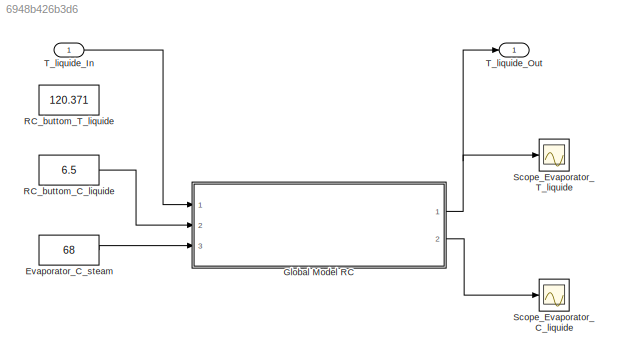
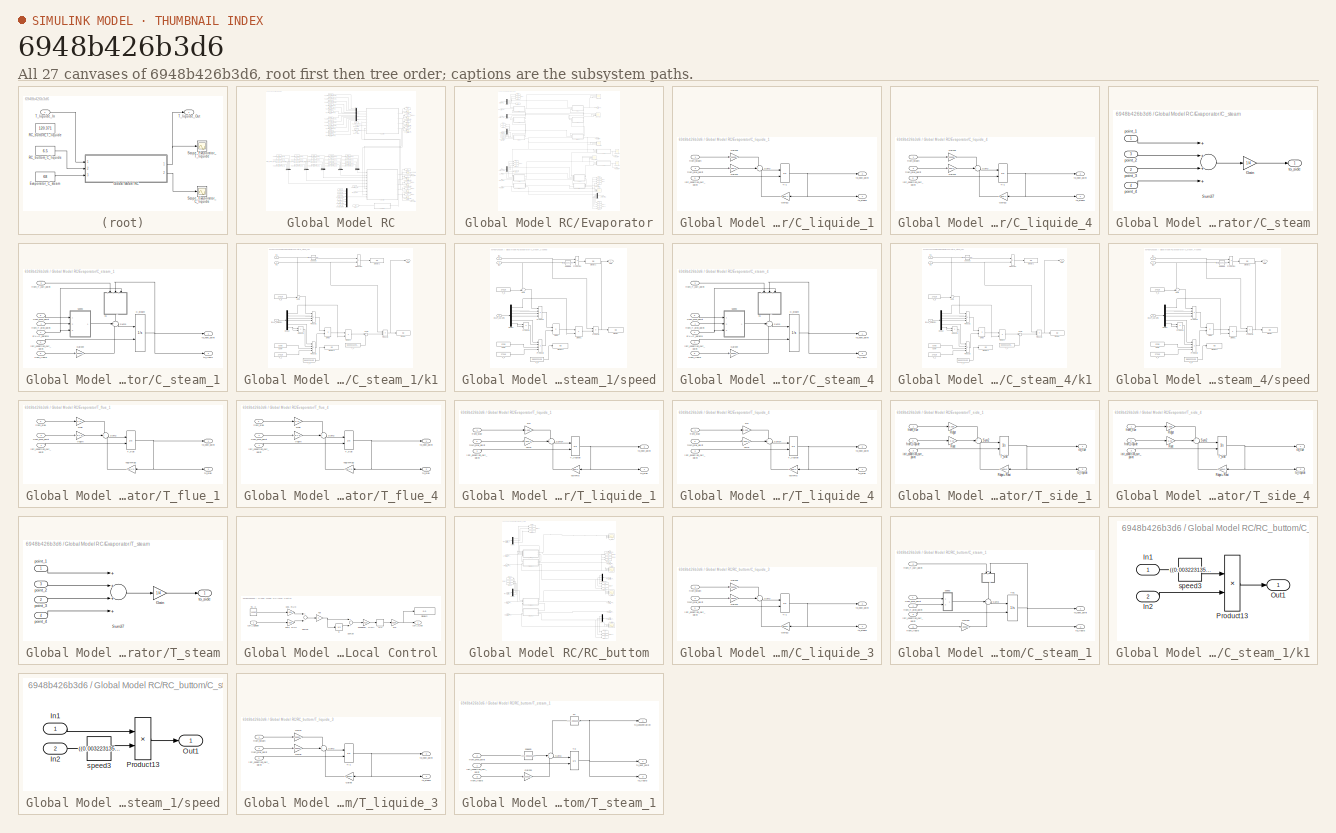
[diagram: thumbnail index - all 27 canvases of the model, root first then tree order]
MODEL slx_6948b426b3d6
KIND model
CONFIG AbsTol = auto
CONFIG EnableMultiTasking = off
CONFIG FixedStep = auto
CONFIG MaxStep = auto
CONFIG MinStep = auto
CONFIG RelTol = 1e-3
CONFIG SampleTimeConstraint = Unconstrained
CONFIG Solver = VariableStepAuto
CONFIG SolverName = VariableStepAuto
CONFIG StartTime = 0.0
CONFIG StopTime = 500000.0
BLOCK [Constant] Evaporator_C_steam
  Value = 68
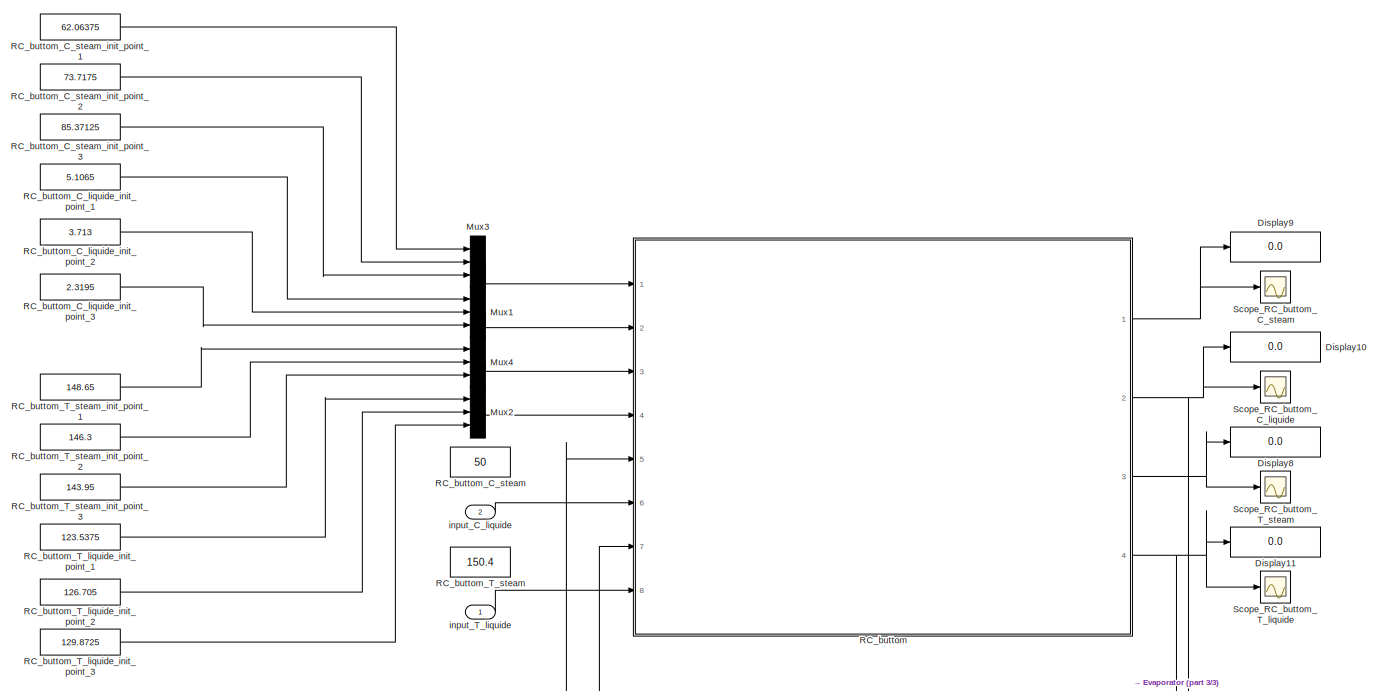
[diagram: Global Model RC - part 1/3, top right region]
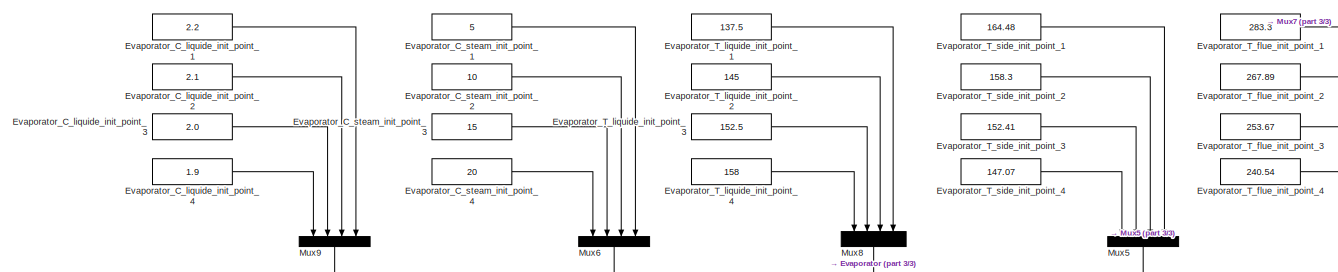
[diagram: Global Model RC - part 2/3, middle left region]
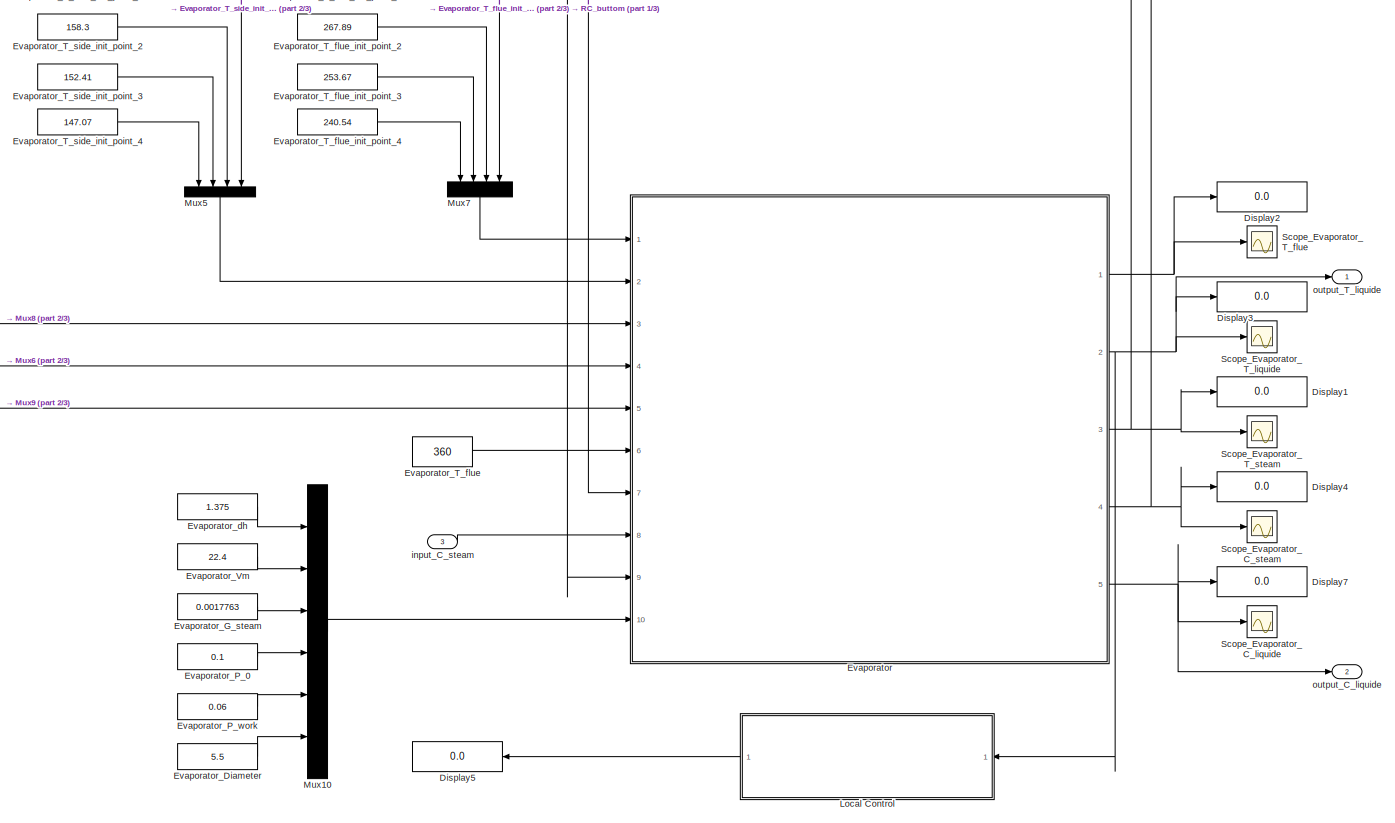
[diagram: Global Model RC - part 3/3, bottom right region]
BLOCK [SubSystem] Global Model RC
  Ports = [3, 2]
  RequestExecContextInheritance = off
BLOCK [Display] Global Model RC/Display1
  Decimation = 1
  Ports = [1]
BLOCK [Display] Global Model RC/Display10
  Decimation = 1
  Ports = [1]
BLOCK [Display] Global Model RC/Display11
  Decimation = 1
  Ports = [1]
BLOCK [Display] Global Model RC/Display2
  Decimation = 1
  Ports = [1]
BLOCK [Display] Global Model RC/Display3
  Decimation = 1
  Ports = [1]
BLOCK [Display] Global Model RC/Display4
  Decimation = 1
  Ports = [1]
BLOCK [Display] Global Model RC/Display5
  Commented = on
  Decimation = 1
  Ports = [1]
BLOCK [Display] Global Model RC/Display7
  Decimation = 1
  Ports = [1]
BLOCK [Display] Global Model RC/Display8
  Decimation = 1
  Ports = [1]
BLOCK [Display] Global Model RC/Display9
  Decimation = 1
  Ports = [1]
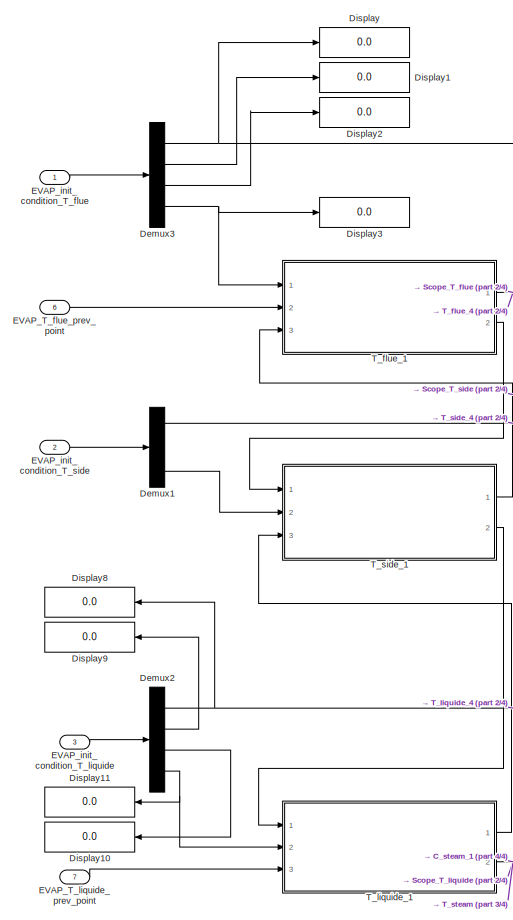
[diagram: Global Model RC/Evaporator - part 1/4, top left region]
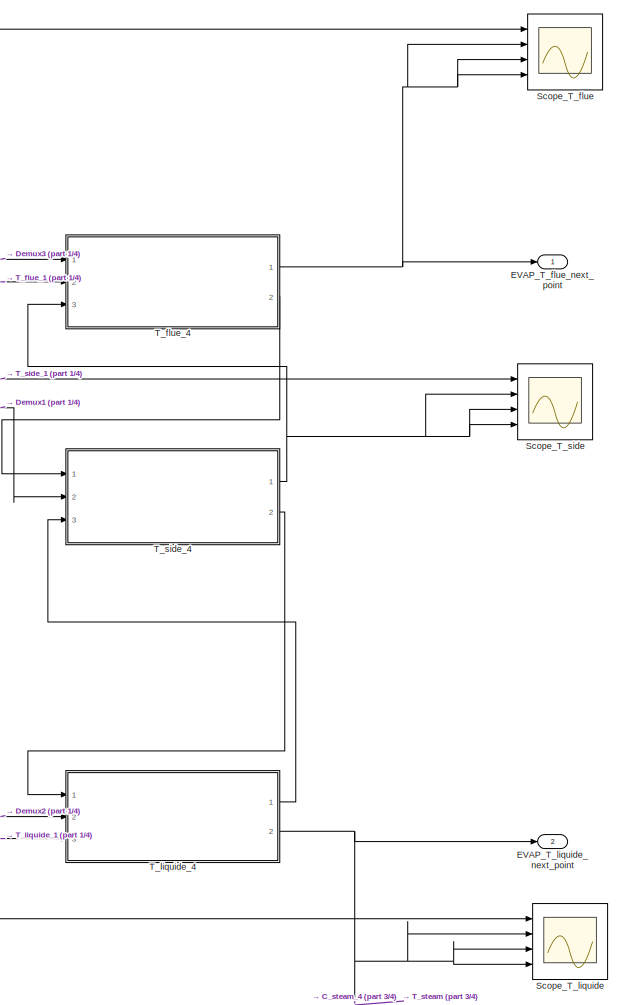
[diagram: Global Model RC/Evaporator - part 2/4, top right region]
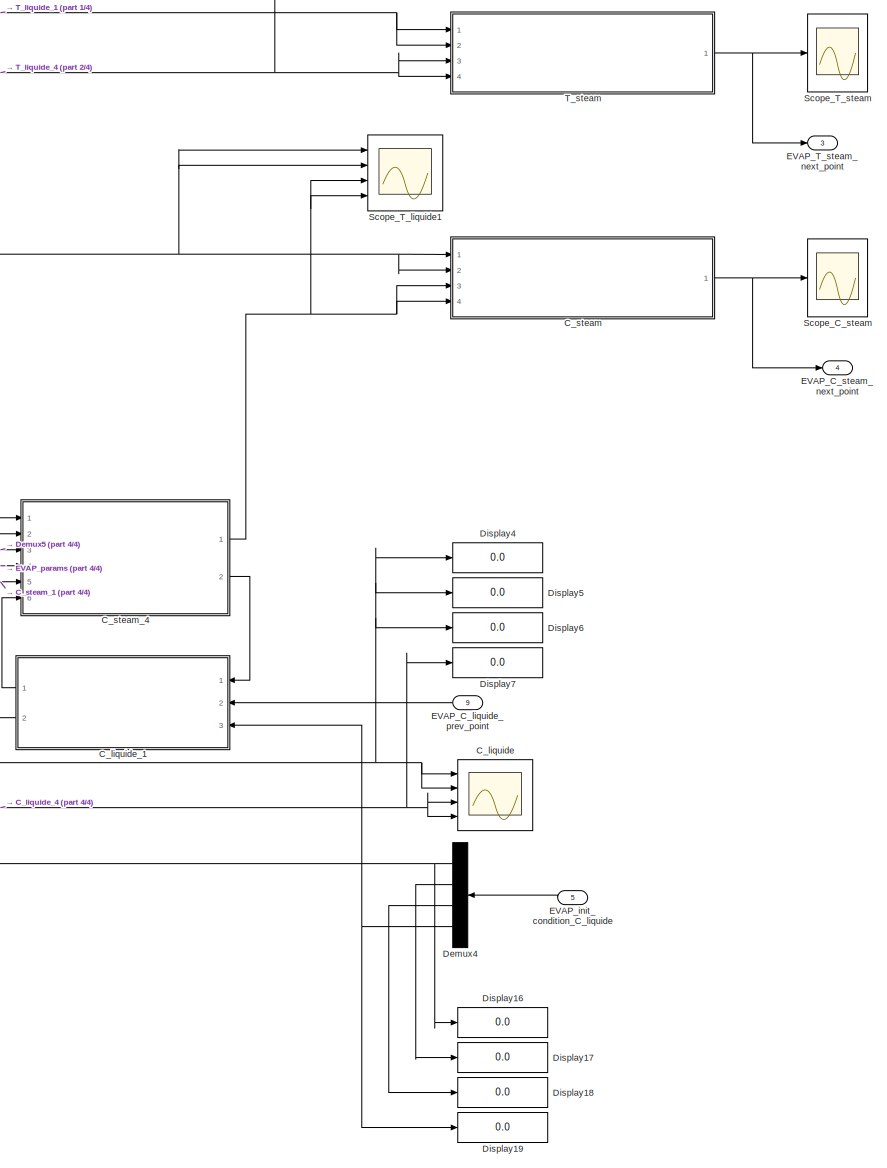
[diagram: Global Model RC/Evaporator - part 3/4, bottom right region]
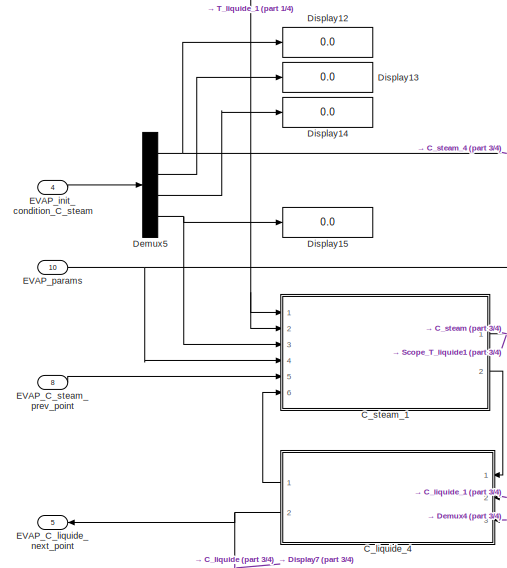
[diagram: Global Model RC/Evaporator - part 4/4, bottom left region]
BLOCK [SubSystem] Global Model RC/Evaporator
  Ports = [10, 5]
  RequestExecContextInheritance = off
BLOCK [Scope] Global Model RC/Evaporator/C_liquide
  Floating = off
  NumInputPorts = 4
  Ports = [4]
  ScopeSpecificationString = Simulink.scopes.TimeScopeBlockCfg('CurrentConfiguration', extmgr.ConfigurationSet(extmgr.Configuration('Core','General UI',true),extmgr.Configuration('Core','Source UI',true),extmgr.Configuration('Sources','WiredSimulink',true,'DataLoggingVariableName','ScopeData2','DataLoggingSaveFormat','StructureWithTime','SampleTime','0','DataLoggingDecimation','1','DataLoggingDecimateData',true),extmgr.Config...<+1637ch>
BLOCK [SubSystem] Global Model RC/Evaporator/C_liquide_1
  Ports = [3, 2]
  RequestExecContextInheritance = off
BLOCK [Gain] Global Model RC/Evaporator/C_liquide_1/Gain18
  Gain = 0.000004000
  OutDataTypeStr = Inherit: Inherit via internal rule
  ParamDataTypeStr = Inherit: Inherit via internal rule
  SaturateOnIntegerOverflow = off
BLOCK [Gain] Global Model RC/Evaporator/C_liquide_1/Gain19
  Gain = 0.003/1.375
  OutDataTypeStr = Inherit: Inherit via internal rule
  ParamDataTypeStr = Inherit: Inherit via internal rule
  SaturateOnIntegerOverflow = off
BLOCK [Gain] Global Model RC/Evaporator/C_liquide_1/Gain22
  Gain = 0.003/1.375-(0.000004000)*10^(-9)
  OutDataTypeStr = Inherit: Inherit via internal rule
  ParamDataTypeStr = Inherit: Inherit via internal rule
  SaturateOnIntegerOverflow = off
BLOCK [Sum] Global Model RC/Evaporator/C_liquide_1/Sum2
  IconShape = round
  InputSameDT = off
  Inputs = -+-
  OutDataTypeStr = Inherit: Inherit via internal rule
  Ports = [3, 1]
  SaturateOnIntegerOverflow = off
BLOCK [Integrator] Global Model RC/Evaporator/C_liquide_1/Tl1
  InitialCondition = 124.3766
  InitialConditionSource = external
  Ports = [2, 1]
BLOCK [Inport] Global Model RC/Evaporator/C_liquide_1/from_prev_point
  IconDisplay = Port number
  Port = 2
BLOCK [Inport] Global Model RC/Evaporator/C_liquide_1/from_steam
  IconDisplay = Port number
BLOCK [Inport] Global Model RC/Evaporator/C_liquide_1/init_condition_curr_point
  IconDisplay = Port number
  Port = 3
BLOCK [Outport] Global Model RC/Evaporator/C_liquide_1/to_next_point
  IconDisplay = Port number
  Port = 2
BLOCK [Outport] Global Model RC/Evaporator/C_liquide_1/to_steam
  IconDisplay = Port number
BLOCK [SubSystem] Global Model RC/Evaporator/C_liquide_4
  Ports = [3, 2]
  RequestExecContextInheritance = off
BLOCK [Gain] Global Model RC/Evaporator/C_liquide_4/Gain18
  Gain = 0.000004000
  OutDataTypeStr = Inherit: Inherit via internal rule
  ParamDataTypeStr = Inherit: Inherit via internal rule
  SaturateOnIntegerOverflow = off
BLOCK [Gain] Global Model RC/Evaporator/C_liquide_4/Gain19
  Gain = 0.003/1.375
  OutDataTypeStr = Inherit: Inherit via internal rule
  ParamDataTypeStr = Inherit: Inherit via internal rule
  SaturateOnIntegerOverflow = off
BLOCK [Gain] Global Model RC/Evaporator/C_liquide_4/Gain22
  Gain = 0.003/1.375-(0.000004000)*10^(-9)
  OutDataTypeStr = Inherit: Inherit via internal rule
  ParamDataTypeStr = Inherit: Inherit via internal rule
  SaturateOnIntegerOverflow = off
BLOCK [Sum] Global Model RC/Evaporator/C_liquide_4/Sum2
  IconShape = round
  InputSameDT = off
  Inputs = -+-
  OutDataTypeStr = Inherit: Inherit via internal rule
  Ports = [3, 1]
  SaturateOnIntegerOverflow = off
BLOCK [Integrator] Global Model RC/Evaporator/C_liquide_4/Tl1
  InitialCondition = 124.3766
  InitialConditionSource = external
  Ports = [2, 1]
BLOCK [Inport] Global Model RC/Evaporator/C_liquide_4/from_prev_point
  IconDisplay = Port number
  Port = 2
BLOCK [Inport] Global Model RC/Evaporator/C_liquide_4/from_steam
  IconDisplay = Port number
BLOCK [Inport] Global Model RC/Evaporator/C_liquide_4/init_condition_curr_point
  IconDisplay = Port number
  Port = 3
BLOCK [Outport] Global Model RC/Evaporator/C_liquide_4/to_next_point
  IconDisplay = Port number
  Port = 2
BLOCK [Outport] Global Model RC/Evaporator/C_liquide_4/to_steam
  IconDisplay = Port number
BLOCK [SubSystem] Global Model RC/Evaporator/C_steam
  Ports = [4, 1]
  RequestExecContextInheritance = off
BLOCK [Gain] Global Model RC/Evaporator/C_steam/Gain
  Gain = 1/4
  OutDataTypeStr = Inherit: Inherit via internal rule
  ParamDataTypeStr = Inherit: Inherit via internal rule
  SaturateOnIntegerOverflow = off
BLOCK [Sum] Global Model RC/Evaporator/C_steam/Sum37
  InputSameDT = off
  Inputs = ++++
  OutDataTypeStr = Inherit: Inherit via internal rule
  Ports = [4, 1]
  SaturateOnIntegerOverflow = off
BLOCK [Inport] Global Model RC/Evaporator/C_steam/point_1
  IconDisplay = Port number
BLOCK [Inport] Global Model RC/Evaporator/C_steam/point_2
  IconDisplay = Port number
  Port = 3
BLOCK [Inport] Global Model RC/Evaporator/C_steam/point_3
  IconDisplay = Port number
  Port = 2
BLOCK [Inport] Global Model RC/Evaporator/C_steam/point_4
  IconDisplay = Port number
  Port = 4
BLOCK [Outport] Global Model RC/Evaporator/C_steam/to_side
  IconDisplay = Port number
BLOCK [SubSystem] Global Model RC/Evaporator/C_steam_1
  Ports = [6, 2]
  RequestExecContextInheritance = off
BLOCK [Integrator] Global Model RC/Evaporator/C_steam_1/C_steam
  InitialCondition = 156.9966
  InitialConditionSource = external
  Ports = [2, 1]
BLOCK [Inport] Global Model RC/Evaporator/C_steam_1/EVAP_params
  IconDisplay = Port number
  Port = 4
BLOCK [Gain] Global Model RC/Evaporator/C_steam_1/Gain29
  Gain = 0.0000216487318*10^(-9)
  OutDataTypeStr = Inherit: Inherit via internal rule
  ParamDataTypeStr = Inherit: Inherit via internal rule
  SaturateOnIntegerOverflow = off
BLOCK [Sum] Global Model RC/Evaporator/C_steam_1/Sum3
  IconShape = round
  InputSameDT = off
  Inputs = -+-
  OutDataTypeStr = Inherit: Inherit via internal rule
  Ports = [3, 1]
  SaturateOnIntegerOverflow = off
BLOCK [Inport] Global Model RC/Evaporator/C_steam_1/from_T_curr_point
  IconDisplay = Port number
  Port = 2
BLOCK [Inport] Global Model RC/Evaporator/C_steam_1/from_T_prev_point
  IconDisplay = Port number
BLOCK [Inport] Global Model RC/Evaporator/C_steam_1/from_liquid
  IconDisplay = Port number
  Port = 6
BLOCK [Inport] Global Model RC/Evaporator/C_steam_1/from_prev_point
  IconDisplay = Port number
  Port = 5
BLOCK [Inport] Global Model RC/Evaporator/C_steam_1/init_condition_curr_point
  IconDisplay = Port number
  Port = 3
BLOCK [SubSystem] Global Model RC/Evaporator/C_steam_1/k1
  Ports = [3, 1]
  RequestExecContextInheritance = off
BLOCK [Constant] Global Model RC/Evaporator/C_steam_1/k1/Coeff
  Value = 0.785
BLOCK [Demux] Global Model RC/Evaporator/C_steam_1/k1/Demux
  DisplayOption = bar
  Outputs = 6
  Ports = [1, 6]
BLOCK [Display] Global Model RC/Evaporator/C_steam_1/k1/Display
  Decimation = 1
  Ports = [1]
BLOCK [Display] Global Model RC/Evaporator/C_steam_1/k1/Display1
  Decimation = 1
  Ports = [1]
BLOCK [Display] Global Model RC/Evaporator/C_steam_1/k1/Display2
  Decimation = 1
  Ports = [1]
BLOCK [Product] Global Model RC/Evaporator/C_steam_1/k1/Divide
  InputSameDT = off
  Inputs = */
  OutDataTypeStr = Inherit: Inherit via internal rule
  Ports = [2, 1]
  RndMeth = Floor
  SaturateOnIntegerOverflow = off
BLOCK [Product] Global Model RC/Evaporator/C_steam_1/k1/Divide1
  InputSameDT = off
  Inputs = */
  OutDataTypeStr = Inherit: Inherit via internal rule
  Ports = [2, 1]
  RndMeth = Floor
  SaturateOnIntegerOverflow = off
BLOCK [Inport] Global Model RC/Evaporator/C_steam_1/k1/EVAP_params1
  IconDisplay = Port number
  Port = 3
BLOCK [Inport] Global Model RC/Evaporator/C_steam_1/k1/In1
  IconDisplay = Port number
BLOCK [Inport] Global Model RC/Evaporator/C_steam_1/k1/In2
  IconDisplay = Port number
  Port = 2
BLOCK [Outport] Global Model RC/Evaporator/C_steam_1/k1/Out1
  IconDisplay = Port number
BLOCK [Product] Global Model RC/Evaporator/C_steam_1/k1/Product1
  Inputs = 4
  Ports = [4, 1]
  RndMeth = Floor
BLOCK [Product] Global Model RC/Evaporator/C_steam_1/k1/Product13
  Ports = [2, 1]
  RndMeth = Floor
BLOCK [Product] Global Model RC/Evaporator/C_steam_1/k1/Product2
  Inputs = 4
  Ports = [4, 1]
  RndMeth = Floor
BLOCK [Product] Global Model RC/Evaporator/C_steam_1/k1/Product3
  Ports = [2, 1]
  RndMeth = Floor
BLOCK [Product] Global Model RC/Evaporator/C_steam_1/k1/Product4
  Ports = [2, 1]
  RndMeth = Floor
BLOCK [Sum] Global Model RC/Evaporator/C_steam_1/k1/Sum
  IconShape = round
  InputSameDT = off
  Inputs = ++|
  OutDataTypeStr = Inherit: Inherit via internal rule
  Ports = [2, 1]
  SaturateOnIntegerOverflow = off
BLOCK [Sum] Global Model RC/Evaporator/C_steam_1/k1/Sum1
  IconShape = round
  InputSameDT = off
  Inputs = |+-
  OutDataTypeStr = Inherit: Inherit via internal rule
  Ports = [2, 1]
  SaturateOnIntegerOverflow = off
BLOCK [Constant] Global Model RC/Evaporator/C_steam_1/k1/T_0
  Value = 273.15
BLOCK [Constant] Global Model RC/Evaporator/C_steam_1/k1/T_1
  Value = 273.15
BLOCK [Constant] Global Model RC/Evaporator/C_steam_1/k1/T_2
  Value = 0.0000216487318
BLOCK [Constant] Global Model RC/Evaporator/C_steam_1/k1/T_3
  Value = 0.003223135
BLOCK [Fcn] Global Model RC/Evaporator/C_steam_1/k1/speed3
  Expr = ((0.003223135*(273+u))/24.69822264)/1.375-0.004302
BLOCK [SubSystem] Global Model RC/Evaporator/C_steam_1/speed
  Ports = [3, 1]
  RequestExecContextInheritance = off
BLOCK [Constant] Global Model RC/Evaporator/C_steam_1/speed/Coeff
  Value = 0.785
BLOCK [Demux] Global Model RC/Evaporator/C_steam_1/speed/Demux
  DisplayOption = bar
  Outputs = 6
  Ports = [1, 6]
BLOCK [Display] Global Model RC/Evaporator/C_steam_1/speed/Display
  Decimation = 1
  Ports = [1]
BLOCK [Display] Global Model RC/Evaporator/C_steam_1/speed/Display1
  Decimation = 1
  Ports = [1]
BLOCK [Display] Global Model RC/Evaporator/C_steam_1/speed/Display2
  Decimation = 1
  Ports = [1]
BLOCK [Product] Global Model RC/Evaporator/C_steam_1/speed/Divide
  InputSameDT = off
  Inputs = */
  OutDataTypeStr = Inherit: Inherit via internal rule
  Ports = [2, 1]
  RndMeth = Floor
  SaturateOnIntegerOverflow = off
BLOCK [Product] Global Model RC/Evaporator/C_steam_1/speed/Divide1
  InputSameDT = off
  Inputs = */
  OutDataTypeStr = Inherit: Inherit via internal rule
  Ports = [2, 1]
  RndMeth = Floor
  SaturateOnIntegerOverflow = off
BLOCK [Inport] Global Model RC/Evaporator/C_steam_1/speed/EVAP_params
  IconDisplay = Port number
  Port = 3
BLOCK [Inport] Global Model RC/Evaporator/C_steam_1/speed/In1
  IconDisplay = Port number
BLOCK [Inport] Global Model RC/Evaporator/C_steam_1/speed/In2
  IconDisplay = Port number
  Port = 2
BLOCK [Outport] Global Model RC/Evaporator/C_steam_1/speed/Out1
  IconDisplay = Port number
BLOCK [Product] Global Model RC/Evaporator/C_steam_1/speed/Product1
  Inputs = 4
  Ports = [4, 1]
  RndMeth = Floor
BLOCK [Product] Global Model RC/Evaporator/C_steam_1/speed/Product13
  Ports = [2, 1]
  RndMeth = Floor
BLOCK [Product] Global Model RC/Evaporator/C_steam_1/speed/Product2
  Inputs = 4
  Ports = [4, 1]
  RndMeth = Floor
BLOCK [Product] Global Model RC/Evaporator/C_steam_1/speed/Product3
  Ports = [2, 1]
  RndMeth = Floor
BLOCK [Product] Global Model RC/Evaporator/C_steam_1/speed/Product4
  Ports = [2, 1]
  RndMeth = Floor
BLOCK [Sum] Global Model RC/Evaporator/C_steam_1/speed/Sum
  IconShape = round
  InputSameDT = off
  Inputs = ++|
  OutDataTypeStr = Inherit: Inherit via internal rule
  Ports = [2, 1]
  SaturateOnIntegerOverflow = off
BLOCK [Constant] Global Model RC/Evaporator/C_steam_1/speed/T_0
  Value = 273.15
BLOCK [Constant] Global Model RC/Evaporator/C_steam_1/speed/T_1
  Value = 273.15
BLOCK [Constant] Global Model RC/Evaporator/C_steam_1/speed/T_2
  Value = 0.003223135
BLOCK [Fcn] Global Model RC/Evaporator/C_steam_1/speed/speed3
  Expr = ((0.003223135*(273+u))/24.69822264)/1.375
BLOCK [Outport] Global Model RC/Evaporator/C_steam_1/to_liquid
  IconDisplay = Port number
  Port = 2
BLOCK [Outport] Global Model RC/Evaporator/C_steam_1/to_next_point
  IconDisplay = Port number
BLOCK [SubSystem] Global Model RC/Evaporator/C_steam_4
  Ports = [6, 2]
  RequestExecContextInheritance = off
BLOCK [Integrator] Global Model RC/Evaporator/C_steam_4/C_steam
  InitialCondition = 156.9966
  InitialConditionSource = external
  Ports = [2, 1]
BLOCK [Inport] Global Model RC/Evaporator/C_steam_4/EVAP_params
  IconDisplay = Port number
  Port = 4
BLOCK [Gain] Global Model RC/Evaporator/C_steam_4/Gain29
  Gain = 0.0000216487318*10^(-9)
  OutDataTypeStr = Inherit: Inherit via internal rule
  ParamDataTypeStr = Inherit: Inherit via internal rule
  SaturateOnIntegerOverflow = off
BLOCK [Sum] Global Model RC/Evaporator/C_steam_4/Sum3
  IconShape = round
  InputSameDT = off
  Inputs = -+-
  OutDataTypeStr = Inherit: Inherit via internal rule
  Ports = [3, 1]
  SaturateOnIntegerOverflow = off
BLOCK [Inport] Global Model RC/Evaporator/C_steam_4/from_T_curr_point
  IconDisplay = Port number
  Port = 2
BLOCK [Inport] Global Model RC/Evaporator/C_steam_4/from_T_prev_point
  IconDisplay = Port number
BLOCK [Inport] Global Model RC/Evaporator/C_steam_4/from_liquid
  IconDisplay = Port number
  Port = 6
BLOCK [Inport] Global Model RC/Evaporator/C_steam_4/from_prev_point
  IconDisplay = Port number
  Port = 5
BLOCK [Inport] Global Model RC/Evaporator/C_steam_4/init_condition_curr_point
  IconDisplay = Port number
  Port = 3
BLOCK [SubSystem] Global Model RC/Evaporator/C_steam_4/k1
  Ports = [3, 1]
  RequestExecContextInheritance = off
BLOCK [Constant] Global Model RC/Evaporator/C_steam_4/k1/Coeff
  Value = 0.785
BLOCK [Demux] Global Model RC/Evaporator/C_steam_4/k1/Demux
  DisplayOption = bar
  Outputs = 6
  Ports = [1, 6]
BLOCK [Display] Global Model RC/Evaporator/C_steam_4/k1/Display
  Decimation = 1
  Ports = [1]
BLOCK [Display] Global Model RC/Evaporator/C_steam_4/k1/Display1
  Decimation = 1
  Ports = [1]
BLOCK [Display] Global Model RC/Evaporator/C_steam_4/k1/Display2
  Decimation = 1
  Ports = [1]
BLOCK [Product] Global Model RC/Evaporator/C_steam_4/k1/Divide
  InputSameDT = off
  Inputs = */
  OutDataTypeStr = Inherit: Inherit via internal rule
  Ports = [2, 1]
  RndMeth = Floor
  SaturateOnIntegerOverflow = off
BLOCK [Product] Global Model RC/Evaporator/C_steam_4/k1/Divide1
  InputSameDT = off
  Inputs = */
  OutDataTypeStr = Inherit: Inherit via internal rule
  Ports = [2, 1]
  RndMeth = Floor
  SaturateOnIntegerOverflow = off
BLOCK [Inport] Global Model RC/Evaporator/C_steam_4/k1/EVAP_params1
  IconDisplay = Port number
  Port = 3
BLOCK [Inport] Global Model RC/Evaporator/C_steam_4/k1/In1
  IconDisplay = Port number
BLOCK [Inport] Global Model RC/Evaporator/C_steam_4/k1/In2
  IconDisplay = Port number
  Port = 2
BLOCK [Outport] Global Model RC/Evaporator/C_steam_4/k1/Out1
  IconDisplay = Port number
BLOCK [Product] Global Model RC/Evaporator/C_steam_4/k1/Product1
  Inputs = 4
  Ports = [4, 1]
  RndMeth = Floor
BLOCK [Product] Global Model RC/Evaporator/C_steam_4/k1/Product13
  Ports = [2, 1]
  RndMeth = Floor
BLOCK [Product] Global Model RC/Evaporator/C_steam_4/k1/Product2
  Inputs = 4
  Ports = [4, 1]
  RndMeth = Floor
BLOCK [Product] Global Model RC/Evaporator/C_steam_4/k1/Product3
  Ports = [2, 1]
  RndMeth = Floor
BLOCK [Product] Global Model RC/Evaporator/C_steam_4/k1/Product4
  Ports = [2, 1]
  RndMeth = Floor
BLOCK [Sum] Global Model RC/Evaporator/C_steam_4/k1/Sum
  IconShape = round
  InputSameDT = off
  Inputs = ++|
  OutDataTypeStr = Inherit: Inherit via internal rule
  Ports = [2, 1]
  SaturateOnIntegerOverflow = off
BLOCK [Sum] Global Model RC/Evaporator/C_steam_4/k1/Sum1
  IconShape = round
  InputSameDT = off
  Inputs = |+-
  OutDataTypeStr = Inherit: Inherit via internal rule
  Ports = [2, 1]
  SaturateOnIntegerOverflow = off
BLOCK [Constant] Global Model RC/Evaporator/C_steam_4/k1/T_0
  Value = 273.15
BLOCK [Constant] Global Model RC/Evaporator/C_steam_4/k1/T_1
  Value = 273.15
BLOCK [Constant] Global Model RC/Evaporator/C_steam_4/k1/T_2
  Value = 0.0000216487318
BLOCK [Constant] Global Model RC/Evaporator/C_steam_4/k1/T_3
  Value = 0.003223135
BLOCK [Fcn] Global Model RC/Evaporator/C_steam_4/k1/speed3
  Expr = ((0.003223135*(273+u))/24.69822264)/1.375-0.004302
BLOCK [SubSystem] Global Model RC/Evaporator/C_steam_4/speed
  Ports = [3, 1]
  RequestExecContextInheritance = off
BLOCK [Constant] Global Model RC/Evaporator/C_steam_4/speed/Coeff
  Value = 0.785
BLOCK [Demux] Global Model RC/Evaporator/C_steam_4/speed/Demux
  DisplayOption = bar
  Outputs = 6
  Ports = [1, 6]
BLOCK [Display] Global Model RC/Evaporator/C_steam_4/speed/Display
  Decimation = 1
  Ports = [1]
BLOCK [Display] Global Model RC/Evaporator/C_steam_4/speed/Display1
  Decimation = 1
  Ports = [1]
BLOCK [Display] Global Model RC/Evaporator/C_steam_4/speed/Display2
  Decimation = 1
  Ports = [1]
BLOCK [Product] Global Model RC/Evaporator/C_steam_4/speed/Divide
  InputSameDT = off
  Inputs = */
  OutDataTypeStr = Inherit: Inherit via internal rule
  Ports = [2, 1]
  RndMeth = Floor
  SaturateOnIntegerOverflow = off
BLOCK [Product] Global Model RC/Evaporator/C_steam_4/speed/Divide1
  InputSameDT = off
  Inputs = */
  OutDataTypeStr = Inherit: Inherit via internal rule
  Ports = [2, 1]
  RndMeth = Floor
  SaturateOnIntegerOverflow = off
BLOCK [Inport] Global Model RC/Evaporator/C_steam_4/speed/EVAP_params
  IconDisplay = Port number
  Port = 3
BLOCK [Inport] Global Model RC/Evaporator/C_steam_4/speed/In1
  IconDisplay = Port number
BLOCK [Inport] Global Model RC/Evaporator/C_steam_4/speed/In2
  IconDisplay = Port number
  Port = 2
BLOCK [Outport] Global Model RC/Evaporator/C_steam_4/speed/Out1
  IconDisplay = Port number
BLOCK [Product] Global Model RC/Evaporator/C_steam_4/speed/Product1
  Inputs = 4
  Ports = [4, 1]
  RndMeth = Floor
BLOCK [Product] Global Model RC/Evaporator/C_steam_4/speed/Product13
  Ports = [2, 1]
  RndMeth = Floor
BLOCK [Product] Global Model RC/Evaporator/C_steam_4/speed/Product2
  Inputs = 4
  Ports = [4, 1]
  RndMeth = Floor
BLOCK [Product] Global Model RC/Evaporator/C_steam_4/speed/Product3
  Ports = [2, 1]
  RndMeth = Floor
BLOCK [Product] Global Model RC/Evaporator/C_steam_4/speed/Product4
  Ports = [2, 1]
  RndMeth = Floor
BLOCK [Sum] Global Model RC/Evaporator/C_steam_4/speed/Sum
  IconShape = round
  InputSameDT = off
  Inputs = ++|
  OutDataTypeStr = Inherit: Inherit via internal rule
  Ports = [2, 1]
  SaturateOnIntegerOverflow = off
BLOCK [Constant] Global Model RC/Evaporator/C_steam_4/speed/T_0
  Value = 273.15
BLOCK [Constant] Global Model RC/Evaporator/C_steam_4/speed/T_1
  Value = 273.15
BLOCK [Constant] Global Model RC/Evaporator/C_steam_4/speed/T_2
  Value = 0.003223135
BLOCK [Fcn] Global Model RC/Evaporator/C_steam_4/speed/speed3
  Expr = ((0.003223135*(273+u))/24.69822264)/1.375
BLOCK [Outport] Global Model RC/Evaporator/C_steam_4/to_liquid
  IconDisplay = Port number
  Port = 2
BLOCK [Outport] Global Model RC/Evaporator/C_steam_4/to_next_point
  IconDisplay = Port number
BLOCK [Demux] Global Model RC/Evaporator/Demux1
  DisplayOption = bar
  Ports = [1, 4]
BLOCK [Demux] Global Model RC/Evaporator/Demux2
  DisplayOption = bar
  Ports = [1, 4]
BLOCK [Demux] Global Model RC/Evaporator/Demux3
  DisplayOption = bar
  Ports = [1, 4]
BLOCK [Demux] Global Model RC/Evaporator/Demux4
  DisplayOption = bar
  Ports = [1, 4]
BLOCK [Demux] Global Model RC/Evaporator/Demux5
  DisplayOption = bar
  Ports = [1, 4]
BLOCK [Display] Global Model RC/Evaporator/Display
  Decimation = 1
  Ports = [1]
BLOCK [Display] Global Model RC/Evaporator/Display1
  Decimation = 1
  Ports = [1]
BLOCK [Display] Global Model RC/Evaporator/Display10
  Decimation = 1
  Ports = [1]
BLOCK [Display] Global Model RC/Evaporator/Display11
  Decimation = 1
  Ports = [1]
BLOCK [Display] Global Model RC/Evaporator/Display12
  Decimation = 1
  Ports = [1]
BLOCK [Display] Global Model RC/Evaporator/Display13
  Decimation = 1
  Ports = [1]
BLOCK [Display] Global Model RC/Evaporator/Display14
  Decimation = 1
  Ports = [1]
BLOCK [Display] Global Model RC/Evaporator/Display15
  Decimation = 1
  Ports = [1]
BLOCK [Display] Global Model RC/Evaporator/Display16
  Decimation = 1
  Ports = [1]
BLOCK [Display] Global Model RC/Evaporator/Display17
  Decimation = 1
  Ports = [1]
BLOCK [Display] Global Model RC/Evaporator/Display18
  Decimation = 1
  Ports = [1]
BLOCK [Display] Global Model RC/Evaporator/Display19
  Decimation = 1
  Ports = [1]
BLOCK [Display] Global Model RC/Evaporator/Display2
  Decimation = 1
  Ports = [1]
BLOCK [Display] Global Model RC/Evaporator/Display3
  Decimation = 1
  Ports = [1]
BLOCK [Display] Global Model RC/Evaporator/Display4
  Decimation = 1
  Ports = [1]
BLOCK [Display] Global Model RC/Evaporator/Display5
  Decimation = 1
  Ports = [1]
BLOCK [Display] Global Model RC/Evaporator/Display6
  Decimation = 1
  Ports = [1]
BLOCK [Display] Global Model RC/Evaporator/Display7
  Decimation = 1
  Ports = [1]
BLOCK [Display] Global Model RC/Evaporator/Display8
  Decimation = 1
  Ports = [1]
BLOCK [Display] Global Model RC/Evaporator/Display9
  Decimation = 1
  Ports = [1]
BLOCK [Outport] Global Model RC/Evaporator/EVAP_C_liquide_next_point
  IconDisplay = Port number
  Port = 5
BLOCK [Inport] Global Model RC/Evaporator/EVAP_C_liquide_prev_point
  IconDisplay = Port number
  Port = 9
BLOCK [Outport] Global Model RC/Evaporator/EVAP_C_steam_next_point
  IconDisplay = Port number
  Port = 4
BLOCK [Inport] Global Model RC/Evaporator/EVAP_C_steam_prev_point
  IconDisplay = Port number
  Port = 8
BLOCK [Outport] Global Model RC/Evaporator/EVAP_T_flue_next_point
  IconDisplay = Port number
BLOCK [Inport] Global Model RC/Evaporator/EVAP_T_flue_prev_point
  IconDisplay = Port number
  Port = 6
BLOCK [Outport] Global Model RC/Evaporator/EVAP_T_liquide_next_point
  IconDisplay = Port number
  Port = 2
BLOCK [Inport] Global Model RC/Evaporator/EVAP_T_liquide_prev_point
  IconDisplay = Port number
  Port = 7
BLOCK [Outport] Global Model RC/Evaporator/EVAP_T_steam_next_point
  IconDisplay = Port number
  Port = 3
BLOCK [Inport] Global Model RC/Evaporator/EVAP_init_condition_C_liquide
  IconDisplay = Port number
  Port = 5
BLOCK [Inport] Global Model RC/Evaporator/EVAP_init_condition_C_steam
  IconDisplay = Port number
  Port = 4
BLOCK [Inport] Global Model RC/Evaporator/EVAP_init_condition_T_flue
  IconDisplay = Port number
BLOCK [Inport] Global Model RC/Evaporator/EVAP_init_condition_T_liquide
  IconDisplay = Port number
  Port = 3
BLOCK [Inport] Global Model RC/Evaporator/EVAP_init_condition_T_side
  IconDisplay = Port number
  Port = 2
BLOCK [Inport] Global Model RC/Evaporator/EVAP_params
  IconDisplay = Port number
  Port = 10
BLOCK [Scope] Global Model RC/Evaporator/Scope_C_steam
  Floating = off
  NumInputPorts = 1
  Ports = [1]
  ScopeSpecificationString = Simulink.scopes.TimeScopeBlockCfg('CurrentConfiguration', extmgr.ConfigurationSet(extmgr.Configuration('Core','General UI',true),extmgr.Configuration('Core','Source UI',true),extmgr.Configuration('Sources','WiredSimulink',true,'DataLoggingVariableName','ScopeData4'),extmgr.Configuration('Visuals','Time Domain',true,'SerializedDisplays',{struct('MinYLimReal','11.43288','MaxYLimReal','22.10408','YLa...<+1397ch>
BLOCK [Scope] Global Model RC/Evaporator/Scope_T_flue
  Floating = off
  NumInputPorts = 4
  Ports = [4]
  ScopeSpecificationString = Simulink.scopes.TimeScopeBlockCfg('CurrentConfiguration', extmgr.ConfigurationSet(extmgr.Configuration('Core','General UI',true),extmgr.Configuration('Core','Source UI',true),extmgr.Configuration('Sources','WiredSimulink',true,'DataLoggingSaveFormat','StructureWithTime','SampleTime','0','DataLoggingDecimation','1','DataLoggingDecimateData',true,'DataLoggingVariableName','ScopeData16'),extmgr.Confi...<+1665ch>
BLOCK [Scope] Global Model RC/Evaporator/Scope_T_liquide
  Floating = off
  NumInputPorts = 4
  Ports = [4]
  ScopeSpecificationString = Simulink.scopes.TimeScopeBlockCfg('CurrentConfiguration', extmgr.ConfigurationSet(extmgr.Configuration('Core','General UI',true),extmgr.Configuration('Core','Source UI',true),extmgr.Configuration('Sources','WiredSimulink',true,'DataLoggingVariableName','ScopeData5','DataLoggingSaveFormat','StructureWithTime','SampleTime','0','DataLoggingDecimation','1','DataLoggingDecimateData',true),extmgr.Config...<+1653ch>
BLOCK [Scope] Global Model RC/Evaporator/Scope_T_liquide1
  Floating = off
  NumInputPorts = 4
  Ports = [4]
  ScopeSpecificationString = Simulink.scopes.TimeScopeBlockCfg('CurrentConfiguration', extmgr.ConfigurationSet(extmgr.Configuration('Core','General UI',true),extmgr.Configuration('Core','Source UI',true),extmgr.Configuration('Sources','WiredSimulink',true,'DataLoggingVariableName','ScopeData1','DataLoggingSaveFormat','StructureWithTime','SampleTime','0','DataLoggingDecimation','1','DataLoggingDecimateData',true),extmgr.Config...<+1633ch>
BLOCK [Scope] Global Model RC/Evaporator/Scope_T_side
  Floating = off
  NumInputPorts = 4
  Ports = [4]
  ScopeSpecificationString = Simulink.scopes.TimeScopeBlockCfg('CurrentConfiguration', extmgr.ConfigurationSet(extmgr.Configuration('Core','General UI',true),extmgr.Configuration('Core','Source UI',true),extmgr.Configuration('Sources','WiredSimulink',true,'DataLoggingSaveFormat','StructureWithTime','SampleTime','0','DataLoggingDecimation','1','DataLoggingDecimateData',true),extmgr.Configuration('Visuals','Time Domain',true,'S...<+1598ch>
BLOCK [Scope] Global Model RC/Evaporator/Scope_T_steam
  Floating = off
  NumInputPorts = 1
  Ports = [1]
  ScopeSpecificationString = Simulink.scopes.TimeScopeBlockCfg('CurrentConfiguration', extmgr.ConfigurationSet(extmgr.Configuration('Core','General UI',true),extmgr.Configuration('Core','Source UI',true),extmgr.Configuration('Sources','WiredSimulink',true,'DataLoggingVariableName','ScopeData1'),extmgr.Configuration('Visuals','Time Domain',true,'SerializedDisplays',{struct('MinYLimReal','16.22194','MaxYLimReal','162.36423','YL...<+1401ch>
BLOCK [SubSystem] Global Model RC/Evaporator/T_flue_1
  Ports = [3, 2]
  RequestExecContextInheritance = off
BLOCK [Gain] Global Model RC/Evaporator/T_flue_1/Rdg
  Gain = 0.47
  OutDataTypeStr = Inherit: Inherit via internal rule
  ParamDataTypeStr = Inherit: Inherit via internal rule
  SaturateOnIntegerOverflow = off
BLOCK [Sum] Global Model RC/Evaporator/T_flue_1/Sum2
  IconShape = round
  InputSameDT = off
  Inputs = ++-
  OutDataTypeStr = Inherit: Inherit via internal rule
  Ports = [3, 1]
  SaturateOnIntegerOverflow = off
BLOCK [Integrator] Global Model RC/Evaporator/T_flue_1/T_flue
  InitialCondition = 124.3766
  InitialConditionSource = external
  Ports = [2, 1]
BLOCK [Gain] Global Model RC/Evaporator/T_flue_1/Vdg//h
  Gain = 4.6/1.375
  OutDataTypeStr = Inherit: Inherit via internal rule
  ParamDataTypeStr = Inherit: Inherit via internal rule
  SaturateOnIntegerOverflow = off
BLOCK [Inport] Global Model RC/Evaporator/T_flue_1/from_prev_point
  IconDisplay = Port number
  Port = 2
BLOCK [Inport] Global Model RC/Evaporator/T_flue_1/from_side
  IconDisplay = Port number
  Port = 3
BLOCK [Inport] Global Model RC/Evaporator/T_flue_1/init_condition_curr_point
  IconDisplay = Port number
BLOCK [Outport] Global Model RC/Evaporator/T_flue_1/to_next_point
  IconDisplay = Port number
BLOCK [Outport] Global Model RC/Evaporator/T_flue_1/to_side
  IconDisplay = Port number
  Port = 2
BLOCK [Gain] Global Model RC/Evaporator/T_flue_1/vdg//h+Rdg
  Gain = 4.6/1.375+0.47
  OutDataTypeStr = Inherit: Inherit via internal rule
  ParamDataTypeStr = Inherit: Inherit via internal rule
  SaturateOnIntegerOverflow = off
BLOCK [SubSystem] Global Model RC/Evaporator/T_flue_4
  Ports = [3, 2]
  RequestExecContextInheritance = off
BLOCK [Gain] Global Model RC/Evaporator/T_flue_4/Rdg
  Gain = 0.47
  OutDataTypeStr = Inherit: Inherit via internal rule
  ParamDataTypeStr = Inherit: Inherit via internal rule
  SaturateOnIntegerOverflow = off
BLOCK [Sum] Global Model RC/Evaporator/T_flue_4/Sum2
  IconShape = round
  InputSameDT = off
  Inputs = ++-
  OutDataTypeStr = Inherit: Inherit via internal rule
  Ports = [3, 1]
  SaturateOnIntegerOverflow = off
BLOCK [Integrator] Global Model RC/Evaporator/T_flue_4/T_flue
  InitialCondition = 124.3766
  InitialConditionSource = external
  Ports = [2, 1]
BLOCK [Gain] Global Model RC/Evaporator/T_flue_4/Vdg//h
  Gain = 4.6/1.375
  OutDataTypeStr = Inherit: Inherit via internal rule
  ParamDataTypeStr = Inherit: Inherit via internal rule
  SaturateOnIntegerOverflow = off
BLOCK [Inport] Global Model RC/Evaporator/T_flue_4/from_prev_point
  IconDisplay = Port number
  Port = 2
BLOCK [Inport] Global Model RC/Evaporator/T_flue_4/from_side
  IconDisplay = Port number
  Port = 3
BLOCK [Inport] Global Model RC/Evaporator/T_flue_4/init_condition_curr_point
  IconDisplay = Port number
BLOCK [Outport] Global Model RC/Evaporator/T_flue_4/to_next_point
  IconDisplay = Port number
BLOCK [Outport] Global Model RC/Evaporator/T_flue_4/to_side
  IconDisplay = Port number
  Port = 2
BLOCK [Gain] Global Model RC/Evaporator/T_flue_4/vdg//h+Rdg
  Gain = 4.6/1.375+0.47
  OutDataTypeStr = Inherit: Inherit via internal rule
  ParamDataTypeStr = Inherit: Inherit via internal rule
  SaturateOnIntegerOverflow = off
BLOCK [SubSystem] Global Model RC/Evaporator/T_liquide_1
  Ports = [3, 2]
  RequestExecContextInheritance = off
BLOCK [Gain] Global Model RC/Evaporator/T_liquide_1/Ra
  Gain = 0.003
  OutDataTypeStr = Inherit: Inherit via internal rule
  ParamDataTypeStr = Inherit: Inherit via internal rule
  SaturateOnIntegerOverflow = off
BLOCK [Sum] Global Model RC/Evaporator/T_liquide_1/Sum37
  IconShape = round
  InputSameDT = off
  Inputs = ++-
  OutDataTypeStr = Inherit: Inherit via internal rule
  Ports = [3, 1]
  SaturateOnIntegerOverflow = off
BLOCK [Integrator] Global Model RC/Evaporator/T_liquide_1/T_liquide
  InitialCondition = 136.285
  InitialConditionSource = external
  Ports = [2, 1]
BLOCK [Inport] Global Model RC/Evaporator/T_liquide_1/from_prev_point
  IconDisplay = Port number
  Port = 3
BLOCK [Inport] Global Model RC/Evaporator/T_liquide_1/from_side
  IconDisplay = Port number
BLOCK [Inport] Global Model RC/Evaporator/T_liquide_1/init_condition_curr_point
  IconDisplay = Port number
  Port = 2
BLOCK [Outport] Global Model RC/Evaporator/T_liquide_1/to_next_point
  IconDisplay = Port number
  Port = 2
BLOCK [Outport] Global Model RC/Evaporator/T_liquide_1/to_side
  IconDisplay = Port number
BLOCK [Gain] Global Model RC/Evaporator/T_liquide_1/va//h+Ra
  Gain = 0.003/1.375+0.003
  OutDataTypeStr = Inherit: Inherit via internal rule
  ParamDataTypeStr = Inherit: Inherit via internal rule
  SaturateOnIntegerOverflow = off
BLOCK [Gain] Global Model RC/Evaporator/T_liquide_1/va//h1
  Gain = 0.003/1.375
  OutDataTypeStr = Inherit: Inherit via internal rule
  ParamDataTypeStr = Inherit: Inherit via internal rule
  SaturateOnIntegerOverflow = off
BLOCK [SubSystem] Global Model RC/Evaporator/T_liquide_4
  Ports = [3, 2]
  RequestExecContextInheritance = off
BLOCK [Gain] Global Model RC/Evaporator/T_liquide_4/Ra
  Gain = 0.003
  OutDataTypeStr = Inherit: Inherit via internal rule
  ParamDataTypeStr = Inherit: Inherit via internal rule
  SaturateOnIntegerOverflow = off
BLOCK [Sum] Global Model RC/Evaporator/T_liquide_4/Sum37
  IconShape = round
  InputSameDT = off
  Inputs = ++-
  OutDataTypeStr = Inherit: Inherit via internal rule
  Ports = [3, 1]
  SaturateOnIntegerOverflow = off
BLOCK [Integrator] Global Model RC/Evaporator/T_liquide_4/T_liquide
  InitialCondition = 136.285
  InitialConditionSource = external
  Ports = [2, 1]
BLOCK [Inport] Global Model RC/Evaporator/T_liquide_4/from_prev_point
  IconDisplay = Port number
  Port = 3
BLOCK [Inport] Global Model RC/Evaporator/T_liquide_4/from_side
  IconDisplay = Port number
BLOCK [Inport] Global Model RC/Evaporator/T_liquide_4/init_condition_curr_point
  IconDisplay = Port number
  Port = 2
BLOCK [Outport] Global Model RC/Evaporator/T_liquide_4/to_next_point
  IconDisplay = Port number
  Port = 2
BLOCK [Outport] Global Model RC/Evaporator/T_liquide_4/to_side
  IconDisplay = Port number
BLOCK [Gain] Global Model RC/Evaporator/T_liquide_4/va//h+Ra
  Gain = 0.003/1.375+0.003
  OutDataTypeStr = Inherit: Inherit via internal rule
  ParamDataTypeStr = Inherit: Inherit via internal rule
  SaturateOnIntegerOverflow = off
BLOCK [Gain] Global Model RC/Evaporator/T_liquide_4/va//h1
  Gain = 0.003/1.375
  OutDataTypeStr = Inherit: Inherit via internal rule
  ParamDataTypeStr = Inherit: Inherit via internal rule
  SaturateOnIntegerOverflow = off
BLOCK [SubSystem] Global Model RC/Evaporator/T_side_1
  Ports = [3, 2]
  RequestExecContextInheritance = off
BLOCK [Gain] Global Model RC/Evaporator/T_side_1/Rast
  Gain = 0.22
  OutDataTypeStr = Inherit: Inherit via internal rule
  ParamDataTypeStr = Inherit: Inherit via internal rule
  SaturateOnIntegerOverflow = off
BLOCK [Gain] Global Model RC/Evaporator/T_side_1/Rdgst
  Gain = 0.008
  OutDataTypeStr = Inherit: Inherit via internal rule
  ParamDataTypeStr = Inherit: Inherit via internal rule
  SaturateOnIntegerOverflow = off
BLOCK [Gain] Global Model RC/Evaporator/T_side_1/Rdgst+Rast
  Gain = 0.008+0.22
  OutDataTypeStr = Inherit: Inherit via internal rule
  ParamDataTypeStr = Inherit: Inherit via internal rule
  SaturateOnIntegerOverflow = off
BLOCK [Sum] Global Model RC/Evaporator/T_side_1/Sum2
  IconShape = round
  InputSameDT = off
  Inputs = ++-
  OutDataTypeStr = Inherit: Inherit via internal rule
  Ports = [3, 1]
  SaturateOnIntegerOverflow = off
BLOCK [Integrator] Global Model RC/Evaporator/T_side_1/T_side
  InitialCondition = 124.3766
  InitialConditionSource = external
  Ports = [2, 1]
BLOCK [Inport] Global Model RC/Evaporator/T_side_1/from_flue
  IconDisplay = Port number
BLOCK [Inport] Global Model RC/Evaporator/T_side_1/from_liquide
  IconDisplay = Port number
  Port = 3
BLOCK [Inport] Global Model RC/Evaporator/T_side_1/init_condition_curr_point
  IconDisplay = Port number
  Port = 2
BLOCK [Outport] Global Model RC/Evaporator/T_side_1/to_flue
  IconDisplay = Port number
BLOCK [Outport] Global Model RC/Evaporator/T_side_1/to_liquide
  IconDisplay = Port number
  Port = 2
BLOCK [SubSystem] Global Model RC/Evaporator/T_side_4
  Ports = [3, 2]
  RequestExecContextInheritance = off
BLOCK [Gain] Global Model RC/Evaporator/T_side_4/Rast
  Gain = 0.22
  OutDataTypeStr = Inherit: Inherit via internal rule
  ParamDataTypeStr = Inherit: Inherit via internal rule
  SaturateOnIntegerOverflow = off
BLOCK [Gain] Global Model RC/Evaporator/T_side_4/Rdgst
  Gain = 0.008
  OutDataTypeStr = Inherit: Inherit via internal rule
  ParamDataTypeStr = Inherit: Inherit via internal rule
  SaturateOnIntegerOverflow = off
BLOCK [Gain] Global Model RC/Evaporator/T_side_4/Rdgst+Rast
  Gain = 0.008+0.22
  OutDataTypeStr = Inherit: Inherit via internal rule
  ParamDataTypeStr = Inherit: Inherit via internal rule
  SaturateOnIntegerOverflow = off
BLOCK [Sum] Global Model RC/Evaporator/T_side_4/Sum2
  IconShape = round
  InputSameDT = off
  Inputs = ++-
  OutDataTypeStr = Inherit: Inherit via internal rule
  Ports = [3, 1]
  SaturateOnIntegerOverflow = off
BLOCK [Integrator] Global Model RC/Evaporator/T_side_4/T_side
  InitialCondition = 124.3766
  InitialConditionSource = external
  Ports = [2, 1]
BLOCK [Inport] Global Model RC/Evaporator/T_side_4/from_flue
  IconDisplay = Port number
BLOCK [Inport] Global Model RC/Evaporator/T_side_4/from_liquide
  IconDisplay = Port number
  Port = 3
BLOCK [Inport] Global Model RC/Evaporator/T_side_4/init_condition_curr_point
  IconDisplay = Port number
  Port = 2
BLOCK [Outport] Global Model RC/Evaporator/T_side_4/to_flue
  IconDisplay = Port number
BLOCK [Outport] Global Model RC/Evaporator/T_side_4/to_liquide
  IconDisplay = Port number
  Port = 2
BLOCK [SubSystem] Global Model RC/Evaporator/T_steam
  Ports = [4, 1]
  RequestExecContextInheritance = off
BLOCK [Gain] Global Model RC/Evaporator/T_steam/Gain
  Gain = 1/4
  OutDataTypeStr = Inherit: Inherit via internal rule
  ParamDataTypeStr = Inherit: Inherit via internal rule
  SaturateOnIntegerOverflow = off
BLOCK [Sum] Global Model RC/Evaporator/T_steam/Sum37
  InputSameDT = off
  Inputs = ++++
  OutDataTypeStr = Inherit: Inherit via internal rule
  Ports = [4, 1]
  SaturateOnIntegerOverflow = off
BLOCK [Inport] Global Model RC/Evaporator/T_steam/point_1
  IconDisplay = Port number
BLOCK [Inport] Global Model RC/Evaporator/T_steam/point_2
  IconDisplay = Port number
  Port = 3
BLOCK [Inport] Global Model RC/Evaporator/T_steam/point_3
  IconDisplay = Port number
  Port = 2
BLOCK [Inport] Global Model RC/Evaporator/T_steam/point_4
  IconDisplay = Port number
  Port = 4
BLOCK [Outport] Global Model RC/Evaporator/T_steam/to_side
  IconDisplay = Port number
BLOCK [Constant] Global Model RC/Evaporator_C_liquide_init_point_1
  Value = 2.2
BLOCK [Constant] Global Model RC/Evaporator_C_liquide_init_point_2
  Value = 2.1
BLOCK [Constant] Global Model RC/Evaporator_C_liquide_init_point_3
  Value = 2.0
BLOCK [Constant] Global Model RC/Evaporator_C_liquide_init_point_4
  Value = 1.9
BLOCK [Constant] Global Model RC/Evaporator_C_steam_init_point_1
  Value = 5
BLOCK [Constant] Global Model RC/Evaporator_C_steam_init_point_2
  Value = 10
BLOCK [Constant] Global Model RC/Evaporator_C_steam_init_point_3
  Value = 15
BLOCK [Constant] Global Model RC/Evaporator_C_steam_init_point_4
  Value = 20
BLOCK [Constant] Global Model RC/Evaporator_Diameter
  Value = 5.5
BLOCK [Constant] Global Model RC/Evaporator_G_steam
  Value = 0.0017763
BLOCK [Constant] Global Model RC/Evaporator_P_0
  Value = 0.1
BLOCK [Constant] Global Model RC/Evaporator_P_work
  Value = 0.06
BLOCK [Constant] Global Model RC/Evaporator_T_flue
  Value = 360
BLOCK [Constant] Global Model RC/Evaporator_T_flue_init_point_1
  Value = 283.3
BLOCK [Constant] Global Model RC/Evaporator_T_flue_init_point_2
  Value = 267.89
BLOCK [Constant] Global Model RC/Evaporator_T_flue_init_point_3
  Value = 253.67
BLOCK [Constant] Global Model RC/Evaporator_T_flue_init_point_4
  Value = 240.54
BLOCK [Constant] Global Model RC/Evaporator_T_liquide_init_point_1
  Value = 137.5
BLOCK [Constant] Global Model RC/Evaporator_T_liquide_init_point_2
  Value = 145
BLOCK [Constant] Global Model RC/Evaporator_T_liquide_init_point_3
  Value = 152.5
BLOCK [Constant] Global Model RC/Evaporator_T_liquide_init_point_4
  Value = 158
BLOCK [Constant] Global Model RC/Evaporator_T_side_init_point_1
  Value = 164.48
BLOCK [Constant] Global Model RC/Evaporator_T_side_init_point_2
  Value = 158.3
BLOCK [Constant] Global Model RC/Evaporator_T_side_init_point_3
  Value = 152.41
BLOCK [Constant] Global Model RC/Evaporator_T_side_init_point_4
  Value = 147.07
BLOCK [Constant] Global Model RC/Evaporator_Vm
  Value = 22.4
BLOCK [Constant] Global Model RC/Evaporator_dh
  Value = 1.375
BLOCK [SubSystem] Global Model RC/Local Control
  Commented = on
  Ports = [1, 1]
  RequestExecContextInheritance = off
BLOCK [RateLimiter] Global Model RC/Local Control/%//c
  FallingSlewLimit = -5
  RisingSlewLimit = 5
  SampleTimeMode = inherited
BLOCK [Display] Global Model RC/Local Control/Display2
  Decimation = 1
  Ports = [1]
BLOCK [Gain] Global Model RC/Local Control/Kdta, mA//C
  Gain = 0.08
  OutDataTypeStr = Inherit: Inherit via internal rule
  ParamDataTypeStr = Inherit: Inherit via internal rule
  SaturateOnIntegerOverflow = off
BLOCK [Gain] Global Model RC/Local Control/Kpi
  OutDataTypeStr = Inherit: Inherit via internal rule
  ParamDataTypeStr = Inherit: Inherit via internal rule
  SaturateOnIntegerOverflow = off
BLOCK [Gain] Global Model RC/Local Control/Kro
  Gain = 0.006
  OutDataTypeStr = Inherit: Inherit via internal rule
  ParamDataTypeStr = Inherit: Inherit via internal rule
  SaturateOnIntegerOverflow = off
BLOCK [Gain] Global Model RC/Local Control/Kzd, mA//C
  Gain = 0.08
  OutDataTypeStr = Inherit: Inherit via internal rule
  ParamDataTypeStr = Inherit: Inherit via internal rule
  SaturateOnIntegerOverflow = off
BLOCK [Sum] Global Model RC/Local Control/Sum29
  InputSameDT = off
  Inputs = +-
  OutDataTypeStr = Inherit: Inherit via internal rule
  Ports = [2, 1]
  SaturateOnIntegerOverflow = off
BLOCK [Sum] Global Model RC/Local Control/Sum30
  InputSameDT = off
  OutDataTypeStr = Inherit: Inherit via internal rule
  Ports = [2, 1]
  SaturateOnIntegerOverflow = off
BLOCK [Integrator] Global Model RC/Local Control/Ti
  InitialCondition = 8000
  LowerSaturationLimit = 6012
  Ports = [1, 1]
  UpperSaturationLimit = 8012
BLOCK [Constant] Global Model RC/Local Control/Tz, C
  Value = 160.00
BLOCK [Outport] Global Model RC/Local Control/curr_T_flue
  IconDisplay = Port number
BLOCK [Inport] Global Model RC/Local Control/curr_T_liquide
  IconDisplay = Port number
BLOCK [Gain] Global Model RC/Local Control/pozicioner, %//mA
  Gain = 6.25
  OutDataTypeStr = Inherit: Inherit via internal rule
  ParamDataTypeStr = Inherit: Inherit via internal rule
  SaturateOnIntegerOverflow = off
BLOCK [Mux] Global Model RC/Mux1
  DisplayOption = bar
  Inputs = 3
  Ports = [3, 1]
BLOCK [Mux] Global Model RC/Mux10
  DisplayOption = bar
  Inputs = 6
  Ports = [6, 1]
BLOCK [Mux] Global Model RC/Mux2
  DisplayOption = bar
  Inputs = 3
  Ports = [3, 1]
BLOCK [Mux] Global Model RC/Mux3
  DisplayOption = bar
  Inputs = 3
  Ports = [3, 1]
BLOCK [Mux] Global Model RC/Mux4
  DisplayOption = bar
  Inputs = 3
  Ports = [3, 1]
BLOCK [Mux] Global Model RC/Mux5
  DisplayOption = bar
  Ports = [4, 1]
BLOCK [Mux] Global Model RC/Mux6
  DisplayOption = bar
  Ports = [4, 1]
BLOCK [Mux] Global Model RC/Mux7
  DisplayOption = bar
  Ports = [4, 1]
BLOCK [Mux] Global Model RC/Mux8
  DisplayOption = bar
  Ports = [4, 1]
BLOCK [Mux] Global Model RC/Mux9
  DisplayOption = bar
  Ports = [4, 1]
BLOCK [SubSystem] Global Model RC/RC_buttom
  Ports = [8, 4]
  RequestExecContextInheritance = off
BLOCK [Scope] Global Model RC/RC_buttom/C_liquide
  Floating = off
  NumInputPorts = 3
  Ports = [3]
  ScopeSpecificationString = Simulink.scopes.TimeScopeBlockCfg('CurrentConfiguration', extmgr.ConfigurationSet(extmgr.Configuration('Core','General UI',true),extmgr.Configuration('Core','Source UI',true),extmgr.Configuration('Sources','WiredSimulink',true,'DataLoggingVariableName','ScopeData7','DataLoggingSaveFormat','StructureWithTime','SampleTime','0','DataLoggingDecimation','1','DataLoggingDecimateData',true),extmgr.Config...<+1623ch>
BLOCK [SubSystem] Global Model RC/RC_buttom/C_liquide_3
  Ports = [3, 2]
  RequestExecContextInheritance = off
BLOCK [Gain] Global Model RC/RC_buttom/C_liquide_3/Gain18
  Gain = 0.000010734
  OutDataTypeStr = Inherit: Inherit via internal rule
  ParamDataTypeStr = Inherit: Inherit via internal rule
  SaturateOnIntegerOverflow = off
BLOCK [Gain] Global Model RC/RC_buttom/C_liquide_3/Gain19
  Gain = 0.0002291314/0.5
  OutDataTypeStr = Inherit: Inherit via internal rule
  ParamDataTypeStr = Inherit: Inherit via internal rule
  SaturateOnIntegerOverflow = off
BLOCK [Gain] Global Model RC/RC_buttom/C_liquide_3/Gain22
  Gain = 0.0002291314/0.5-(0.000010734)*10^(-9)
  OutDataTypeStr = Inherit: Inherit via internal rule
  ParamDataTypeStr = Inherit: Inherit via internal rule
  SaturateOnIntegerOverflow = off
BLOCK [Sum] Global Model RC/RC_buttom/C_liquide_3/Sum2
  IconShape = round
  InputSameDT = off
  Inputs = -+-
  OutDataTypeStr = Inherit: Inherit via internal rule
  Ports = [3, 1]
  SaturateOnIntegerOverflow = off
BLOCK [Integrator] Global Model RC/RC_buttom/C_liquide_3/Tl1
  InitialCondition = 124.3766
  InitialConditionSource = external
  Ports = [2, 1]
BLOCK [Inport] Global Model RC/RC_buttom/C_liquide_3/from_prev_point
  IconDisplay = Port number
  Port = 2
BLOCK [Inport] Global Model RC/RC_buttom/C_liquide_3/from_steam
  IconDisplay = Port number
BLOCK [Inport] Global Model RC/RC_buttom/C_liquide_3/init_condition_curr_point
  IconDisplay = Port number
  Port = 3
BLOCK [Outport] Global Model RC/RC_buttom/C_liquide_3/to_next_point
  IconDisplay = Port number
  Port = 2
BLOCK [Outport] Global Model RC/RC_buttom/C_liquide_3/to_steam
  IconDisplay = Port number
BLOCK [Outport] Global Model RC/RC_buttom/C_liquide_next_point
  IconDisplay = Port number
  Port = 2
BLOCK [Inport] Global Model RC/RC_buttom/C_liquide_prev_point
  IconDisplay = Port number
  Port = 6
BLOCK [Scope] Global Model RC/RC_buttom/C_steam
  Floating = off
  NumInputPorts = 3
  Ports = [3]
  ScopeSpecificationString = Simulink.scopes.TimeScopeBlockCfg('CurrentConfiguration', extmgr.ConfigurationSet(extmgr.Configuration('Core','General UI',true),extmgr.Configuration('Core','Source UI',true),extmgr.Configuration('Sources','WiredSimulink',true,'DataLoggingVariableName','ScopeData8','DataLoggingSaveFormat','StructureWithTime','SampleTime','0','DataLoggingDecimation','1','DataLoggingDecimateData',true),extmgr.Config...<+1623ch>
BLOCK [SubSystem] Global Model RC/RC_buttom/C_steam_1
  Ports = [5, 2]
  RequestExecContextInheritance = off
BLOCK [Gain] Global Model RC/RC_buttom/C_steam_1/Gain29
  Gain = 0.0000216487318*10^(-9)
  OutDataTypeStr = Inherit: Inherit via internal rule
  ParamDataTypeStr = Inherit: Inherit via internal rule
  SaturateOnIntegerOverflow = off
BLOCK [Sum] Global Model RC/RC_buttom/C_steam_1/Sum3
  IconShape = round
  InputSameDT = off
  Inputs = -+-
  OutDataTypeStr = Inherit: Inherit via internal rule
  Ports = [3, 1]
  SaturateOnIntegerOverflow = off
BLOCK [Integrator] Global Model RC/RC_buttom/C_steam_1/Tp1
  InitialCondition = 156.9966
  InitialConditionSource = external
  Ports = [2, 1]
BLOCK [Inport] Global Model RC/RC_buttom/C_steam_1/from_T_curr_point
  IconDisplay = Port number
  Port = 2
BLOCK [Inport] Global Model RC/RC_buttom/C_steam_1/from_T_prev_point
  IconDisplay = Port number
BLOCK [Inport] Global Model RC/RC_buttom/C_steam_1/from_liquid
  IconDisplay = Port number
  Port = 5
BLOCK [Inport] Global Model RC/RC_buttom/C_steam_1/from_prev_point
  IconDisplay = Port number
  Port = 4
BLOCK [Inport] Global Model RC/RC_buttom/C_steam_1/init_condition_curr_point
  IconDisplay = Port number
  Port = 3
BLOCK [SubSystem] Global Model RC/RC_buttom/C_steam_1/k1
  Ports = [2, 1]
  RequestExecContextInheritance = off
BLOCK [Inport] Global Model RC/RC_buttom/C_steam_1/k1/In1
  IconDisplay = Port number
BLOCK [Inport] Global Model RC/RC_buttom/C_steam_1/k1/In2
  IconDisplay = Port number
  Port = 2
BLOCK [Outport] Global Model RC/RC_buttom/C_steam_1/k1/Out1
  IconDisplay = Port number
BLOCK [Product] Global Model RC/RC_buttom/C_steam_1/k1/Product13
  Ports = [2, 1]
  RndMeth = Floor
BLOCK [Fcn] Global Model RC/RC_buttom/C_steam_1/k1/speed3
  Expr = ((0.003223135*(273+u))/24.69822264)/0.5-0.0000216487318
BLOCK [SubSystem] Global Model RC/RC_buttom/C_steam_1/speed
  Ports = [2, 1]
  RequestExecContextInheritance = off
BLOCK [Inport] Global Model RC/RC_buttom/C_steam_1/speed/In1
  IconDisplay = Port number
BLOCK [Inport] Global Model RC/RC_buttom/C_steam_1/speed/In2
  IconDisplay = Port number
  Port = 2
BLOCK [Outport] Global Model RC/RC_buttom/C_steam_1/speed/Out1
  IconDisplay = Port number
BLOCK [Product] Global Model RC/RC_buttom/C_steam_1/speed/Product13
  Ports = [2, 1]
  RndMeth = Floor
BLOCK [Fcn] Global Model RC/RC_buttom/C_steam_1/speed/speed3
  Expr = ((0.003223135*(273+u))/24.69822264)/0.5
BLOCK [Outport] Global Model RC/RC_buttom/C_steam_1/to_liquid
  IconDisplay = Port number
  Port = 2
BLOCK [Outport] Global Model RC/RC_buttom/C_steam_1/to_next_point
  IconDisplay = Port number
BLOCK [Outport] Global Model RC/RC_buttom/C_steam_next_point
  IconDisplay = Port number
BLOCK [Inport] Global Model RC/RC_buttom/C_steam_prev_point
  IconDisplay = Port number
  Port = 5
BLOCK [Demux] Global Model RC/RC_buttom/Demux1
  DisplayOption = bar
  Outputs = 3
  Ports = [1, 3]
BLOCK [Demux] Global Model RC/RC_buttom/Demux2
  DisplayOption = bar
  Outputs = 3
  Ports = [1, 3]
BLOCK [Demux] Global Model RC/RC_buttom/Demux3
  DisplayOption = bar
  Outputs = 3
  Ports = [1, 3]
BLOCK [Demux] Global Model RC/RC_buttom/Demux4
  DisplayOption = bar
  Outputs = 3
  Ports = [1, 3]
BLOCK [Display] Global Model RC/RC_buttom/Display
  Decimation = 1
  Ports = [1]
BLOCK [Display] Global Model RC/RC_buttom/Display1
  Decimation = 1
  Ports = [1]
BLOCK [Display] Global Model RC/RC_buttom/Display10
  Decimation = 1
  Ports = [1]
BLOCK [Display] Global Model RC/RC_buttom/Display11
  Decimation = 1
  Ports = [1]
BLOCK [Display] Global Model RC/RC_buttom/Display12
  Decimation = 1
  Ports = [1]
BLOCK [Display] Global Model RC/RC_buttom/Display13
  Decimation = 1
  Ports = [1]
BLOCK [Display] Global Model RC/RC_buttom/Display14
  Decimation = 1
  Ports = [1]
BLOCK [Display] Global Model RC/RC_buttom/Display2
  Decimation = 1
  Ports = [1]
BLOCK [Display] Global Model RC/RC_buttom/Display3
  Decimation = 1
  Ports = [1]
BLOCK [Display] Global Model RC/RC_buttom/Display4
  Decimation = 1
  Ports = [1]
BLOCK [Display] Global Model RC/RC_buttom/Display5
  Decimation = 1
  Ports = [1]
BLOCK [Display] Global Model RC/RC_buttom/Display6
  Decimation = 1
  Ports = [1]
BLOCK [Display] Global Model RC/RC_buttom/Display7
  Decimation = 1
  Ports = [1]
BLOCK [Display] Global Model RC/RC_buttom/Display8
  Decimation = 1
  Ports = [1]
BLOCK [Display] Global Model RC/RC_buttom/Display9
  Decimation = 1
  Ports = [1]
BLOCK [Scope] Global Model RC/RC_buttom/T_liquide
  Floating = off
  NumInputPorts = 3
  Ports = [3]
  ScopeSpecificationString = Simulink.scopes.TimeScopeBlockCfg('CurrentConfiguration', extmgr.ConfigurationSet(extmgr.Configuration('Core','General UI',true),extmgr.Configuration('Core','Source UI',true),extmgr.Configuration('Sources','WiredSimulink',true,'DataLoggingVariableName','ScopeData6','DataLoggingSaveFormat','StructureWithTime','SampleTime','0','DataLoggingDecimation','1','DataLoggingDecimateData',true),extmgr.Config...<+1637ch>
BLOCK [SubSystem] Global Model RC/RC_buttom/T_liquide_3
  Ports = [3, 2]
  RequestExecContextInheritance = off
BLOCK [Gain] Global Model RC/RC_buttom/T_liquide_3/Gain4
  Gain = 0.0000777
  OutDataTypeStr = Inherit: Inherit via internal rule
  ParamDataTypeStr = Inherit: Inherit via internal rule
  SaturateOnIntegerOverflow = off
BLOCK [Gain] Global Model RC/RC_buttom/T_liquide_3/Gain5
  Gain = 0.0002291314/0.5
  OutDataTypeStr = Inherit: Inherit via internal rule
  ParamDataTypeStr = Inherit: Inherit via internal rule
  SaturateOnIntegerOverflow = off
BLOCK [Gain] Global Model RC/RC_buttom/T_liquide_3/Gain8
  Gain = 0.0002291314/0.5+0.0000777
  OutDataTypeStr = Inherit: Inherit via internal rule
  ParamDataTypeStr = Inherit: Inherit via internal rule
  SaturateOnIntegerOverflow = off
BLOCK [Sum] Global Model RC/RC_buttom/T_liquide_3/Sum2
  IconShape = round
  InputSameDT = off
  Inputs = ++-
  OutDataTypeStr = Inherit: Inherit via internal rule
  Ports = [3, 1]
  SaturateOnIntegerOverflow = off
BLOCK [Integrator] Global Model RC/RC_buttom/T_liquide_3/Tl1
  InitialCondition = 124.3766
  InitialConditionSource = external
  Ports = [2, 1]
BLOCK [Inport] Global Model RC/RC_buttom/T_liquide_3/from_prev_point
  IconDisplay = Port number
  Port = 2
BLOCK [Inport] Global Model RC/RC_buttom/T_liquide_3/from_steam
  IconDisplay = Port number
BLOCK [Inport] Global Model RC/RC_buttom/T_liquide_3/init_condition_curr_point
  IconDisplay = Port number
  Port = 3
BLOCK [Outport] Global Model RC/RC_buttom/T_liquide_3/to_next_point
  IconDisplay = Port number
  Port = 2
BLOCK [Outport] Global Model RC/RC_buttom/T_liquide_3/to_steam
  IconDisplay = Port number
BLOCK [Outport] Global Model RC/RC_buttom/T_liquide_next_point
  IconDisplay = Port number
  Port = 4
BLOCK [Inport] Global Model RC/RC_buttom/T_liquide_prev_point
  IconDisplay = Port number
  Port = 8
BLOCK [Scope] Global Model RC/RC_buttom/T_steam
  Floating = off
  NumInputPorts = 3
  Ports = [3]
  ScopeSpecificationString = Simulink.scopes.TimeScopeBlockCfg('CurrentConfiguration', extmgr.ConfigurationSet(extmgr.Configuration('Core','General UI',true),extmgr.Configuration('Core','Source UI',true),extmgr.Configuration('Sources','WiredSimulink',true,'DataLoggingVariableName','ScopeData5','DataLoggingSaveFormat','StructureWithTime','SampleTime','0','DataLoggingDecimation','1','DataLoggingDecimateData',true),extmgr.Config...<+1627ch>
BLOCK [SubSystem] Global Model RC/RC_buttom/T_steam_1
  Ports = [3, 3]
  RequestExecContextInheritance = off
BLOCK [Gain] Global Model RC/RC_buttom/T_steam_1/Gain33
  Gain = 0.0191806
  OutDataTypeStr = Inherit: Inherit via internal rule
  ParamDataTypeStr = Inherit: Inherit via internal rule
  SaturateOnIntegerOverflow = off
BLOCK [Sum] Global Model RC/RC_buttom/T_steam_1/Sum3
  IconShape = round
  InputSameDT = off
  Inputs = -++
  OutDataTypeStr = Inherit: Inherit via internal rule
  Ports = [3, 1]
  SaturateOnIntegerOverflow = off
BLOCK [Integrator] Global Model RC/RC_buttom/T_steam_1/Tp
  InitialCondition = 156.9966
  InitialConditionSource = external
  Ports = [2, 1]
BLOCK [Inport] Global Model RC/RC_buttom/T_steam_1/from_liquid
  IconDisplay = Port number
  Port = 3
BLOCK [Inport] Global Model RC/RC_buttom/T_steam_1/from_prev_point
  IconDisplay = Port number
  Port = 2
BLOCK [Inport] Global Model RC/RC_buttom/T_steam_1/init_condition_curr_point
  IconDisplay = Port number
BLOCK [Fcn] Global Model RC/RC_buttom/T_steam_1/k4
  Expr = (((0.003223135*(273+u))/24.69822264)/0.5+0.0191806)*u
BLOCK [Fcn] Global Model RC/RC_buttom/T_steam_1/speed3
  Expr = (((0.003223135*(273+u))/24.69822264)/0.5)*u
BLOCK [Outport] Global Model RC/RC_buttom/T_steam_1/to_concentration
  IconDisplay = Port number
BLOCK [Outport] Global Model RC/RC_buttom/T_steam_1/to_liquid
  IconDisplay = Port number
  Port = 3
BLOCK [Outport] Global Model RC/RC_buttom/T_steam_1/to_next_point
  IconDisplay = Port number
  Port = 2
BLOCK [Outport] Global Model RC/RC_buttom/T_steam_next_point
  IconDisplay = Port number
  Port = 3
BLOCK [Inport] Global Model RC/RC_buttom/T_steam_prev_point
  IconDisplay = Port number
  Port = 7
BLOCK [Inport] Global Model RC/RC_buttom/init_condition_C_liquide
  IconDisplay = Port number
  Port = 2
BLOCK [Inport] Global Model RC/RC_buttom/init_condition_C_steam
  IconDisplay = Port number
BLOCK [Inport] Global Model RC/RC_buttom/init_condition_T_liquide
  IconDisplay = Port number
  Port = 4
BLOCK [Inport] Global Model RC/RC_buttom/init_condition_T_steam
  IconDisplay = Port number
  Port = 3
BLOCK [Constant] Global Model RC/RC_buttom_C_liquide_init_point_1
  Value = 5.1065
BLOCK [Constant] Global Model RC/RC_buttom_C_liquide_init_point_2
  Value = 3.713
BLOCK [Constant] Global Model RC/RC_buttom_C_liquide_init_point_3
  Value = 2.3195
BLOCK [Constant] Global Model RC/RC_buttom_C_steam
  Commented = on
  Value = 50
BLOCK [Constant] Global Model RC/RC_buttom_C_steam_init_point_1
  Value = 62.06375
BLOCK [Constant] Global Model RC/RC_buttom_C_steam_init_point_2
  Value = 73.7175
BLOCK [Constant] Global Model RC/RC_buttom_C_steam_init_point_3
  Value = 85.37125
BLOCK [Constant] Global Model RC/RC_buttom_T_liquide_init_point_1
  Value = 123.5375
BLOCK [Constant] Global Model RC/RC_buttom_T_liquide_init_point_2
  Value = 126.705
BLOCK [Constant] Global Model RC/RC_buttom_T_liquide_init_point_3
  Value = 129.8725
BLOCK [Constant] Global Model RC/RC_buttom_T_steam
  Commented = on
  Value = 150.4
BLOCK [Constant] Global Model RC/RC_buttom_T_steam_init_point_1
  Value = 148.65
BLOCK [Constant] Global Model RC/RC_buttom_T_steam_init_point_2
  Value = 146.3
BLOCK [Constant] Global Model RC/RC_buttom_T_steam_init_point_3
  Value = 143.95
BLOCK [Scope] Global Model RC/Scope_Evaporator_C_liquide
  Floating = off
  NumInputPorts = 1
  Ports = [1]
  ScopeSpecificationString = Simulink.scopes.TimeScopeBlockCfg('CurrentConfiguration', extmgr.ConfigurationSet(extmgr.Configuration('Core','General UI',true),extmgr.Configuration('Core','Source UI',true),extmgr.Configuration('Sources','WiredSimulink',true,'DataLoggingVariableName','ScopeData1'),extmgr.Configuration('Visuals','Time Domain',true,'SerializedDisplays',{struct('MinYLimReal','0.00003','MaxYLimReal','1.29052','YLabe...<+1413ch>
BLOCK [Scope] Global Model RC/Scope_Evaporator_C_steam
  Floating = off
  NumInputPorts = 1
  Ports = [1]
  ScopeSpecificationString = Simulink.scopes.TimeScopeBlockCfg('CurrentConfiguration', extmgr.ConfigurationSet(extmgr.Configuration('Core','General UI',true),extmgr.Configuration('Core','Source UI',true),extmgr.Configuration('Sources','WiredSimulink',true,'DataLoggingVariableName','ScopeData2'),extmgr.Configuration('Visuals','Time Domain',true,'SerializedDisplays',{struct('MinYLimReal','7.70152','MaxYLimReal','53.69271','YLab...<+1417ch>
BLOCK [Scope] Global Model RC/Scope_Evaporator_T_flue
  Floating = off
  NumInputPorts = 1
  Ports = [1]
  ScopeSpecificationString = Simulink.scopes.TimeScopeBlockCfg('CurrentConfiguration', extmgr.ConfigurationSet(extmgr.Configuration('Core','General UI',true),extmgr.Configuration('Core','Source UI',true),extmgr.Configuration('Sources','WiredSimulink',true,'DataLoggingVariableName','ScopeData3'),extmgr.Configuration('Visuals','Time Domain',true,'SerializedDisplays',{struct('MinYLimReal','212.60021','MaxYLimReal','486.8192','YL...<+1425ch>
BLOCK [Scope] Global Model RC/Scope_Evaporator_T_liquide
  Floating = off
  NumInputPorts = 1
  Ports = [1]
  ScopeSpecificationString = Simulink.scopes.TimeScopeBlockCfg('CurrentConfiguration', extmgr.ConfigurationSet(extmgr.Configuration('Core','General UI',true),extmgr.Configuration('Core','Source UI',true),extmgr.Configuration('Sources','WiredSimulink',true,'DataLoggingVariableName','ScopeData4'),extmgr.Configuration('Visuals','Time Domain',true,'SerializedDisplays',{struct('MinYLimReal','154.82839','MaxYLimReal','183.82142','Y...<+1429ch>
BLOCK [Scope] Global Model RC/Scope_Evaporator_T_steam
  Floating = off
  NumInputPorts = 1
  Ports = [1]
  ScopeSpecificationString = Simulink.scopes.TimeScopeBlockCfg('CurrentConfiguration', extmgr.ConfigurationSet(extmgr.Configuration('Core','General UI',true),extmgr.Configuration('Core','Source UI',true),extmgr.Configuration('Sources','WiredSimulink',true,'DataLoggingVariableName','ScopeData5'),extmgr.Configuration('Visuals','Time Domain',true,'SerializedDisplays',{struct('MinYLimReal','141.01821','MaxYLimReal','163.38369','Y...<+1429ch>
BLOCK [Scope] Global Model RC/Scope_RC_buttom_C_liquide
  Floating = off
  NumInputPorts = 1
  Ports = [1]
  ScopeSpecificationString = Simulink.scopes.TimeScopeBlockCfg('CurrentConfiguration', extmgr.ConfigurationSet(extmgr.Configuration('Core','General UI',true),extmgr.Configuration('Core','Source UI',true),extmgr.Configuration('Sources','WiredSimulink',true,'DataLoggingVariableName','ScopeData6'),extmgr.Configuration('Visuals','Time Domain',true,'SerializedDisplays',{struct('MinYLimReal','-5.64741','MaxYLimReal','3.20471','YLab...<+1395ch>
BLOCK [Scope] Global Model RC/Scope_RC_buttom_C_steam
  Floating = off
  NumInputPorts = 1
  Ports = [1]
  ScopeSpecificationString = Simulink.scopes.TimeScopeBlockCfg('CurrentConfiguration', extmgr.ConfigurationSet(extmgr.Configuration('Core','General UI',true),extmgr.Configuration('Core','Source UI',true),extmgr.Configuration('Sources','WiredSimulink',true,'DataLoggingVariableName','ScopeData7'),extmgr.Configuration('Visuals','Time Domain',true,'SerializedDisplays',{struct('MinYLimReal','66.24799','MaxYLimReal','87.49606','YLa...<+1420ch>
BLOCK [Scope] Global Model RC/Scope_RC_buttom_T_liquide
  Floating = off
  NumInputPorts = 1
  Ports = [1]
  ScopeSpecificationString = Simulink.scopes.TimeScopeBlockCfg('CurrentConfiguration', extmgr.ConfigurationSet(extmgr.Configuration('Core','General UI',true),extmgr.Configuration('Core','Source UI',true),extmgr.Configuration('Sources','WiredSimulink',true,'DataLoggingVariableName','ScopeData8'),extmgr.Configuration('Visuals','Time Domain',true,'SerializedDisplays',{struct('MinYLimReal','129.4766','MaxYLimReal','133.43558','YL...<+1452ch>
BLOCK [Scope] Global Model RC/Scope_RC_buttom_T_steam
  Floating = off
  NumInputPorts = 1
  Ports = [1]
  ScopeSpecificationString = Simulink.scopes.TimeScopeBlockCfg('CurrentConfiguration', extmgr.ConfigurationSet(extmgr.Configuration('Core','General UI',true),extmgr.Configuration('Core','Source UI',true),extmgr.Configuration('Sources','WiredSimulink',true,'DataLoggingVariableName','ScopeData9'),extmgr.Configuration('Visuals','Time Domain',true,'SerializedDisplays',{struct('MinYLimReal','143.05927','MaxYLimReal','151.42805','Y...<+1454ch>
BLOCK [Inport] Global Model RC/input_C_liquide
  IconDisplay = Port number
  Port = 2
BLOCK [Inport] Global Model RC/input_C_steam
  IconDisplay = Port number
  Port = 3
BLOCK [Inport] Global Model RC/input_T_liquide
  IconDisplay = Port number
BLOCK [Outport] Global Model RC/output_C_liquide
  IconDisplay = Port number
  Port = 2
BLOCK [Outport] Global Model RC/output_T_liquide
  IconDisplay = Port number
BLOCK [Constant] RC_buttom_C_liquide
  Value = 6.5
BLOCK [Constant] RC_buttom_T_liquide
  Commented = on
  Value = 120.371
BLOCK [Scope] Scope_Evaporator_C_liquide
  Floating = off
  NumInputPorts = 1
  Ports = [1]
  ScopeSpecificationString = Simulink.scopes.TimeScopeBlockCfg('CurrentConfiguration', extmgr.ConfigurationSet(extmgr.Configuration('Core','General UI',true),extmgr.Configuration('Core','Source UI',true),extmgr.Configuration('Sources','WiredSimulink',true,'DataLoggingVariableName','ScopeData11'),extmgr.Configuration('Visuals','Time Domain',true,'SerializedDisplays',{struct('MinYLimReal','0.00003','MaxYLimReal','1.29052','YLab...<+1414ch>
BLOCK [Scope] Scope_Evaporator_T_liquide
  Floating = off
  NumInputPorts = 1
  Ports = [1]
  ScopeSpecificationString = Simulink.scopes.TimeScopeBlockCfg('CurrentConfiguration', extmgr.ConfigurationSet(extmgr.Configuration('Core','General UI',true),extmgr.Configuration('Core','Source UI',true),extmgr.Configuration('Sources','WiredSimulink',true,'DataLoggingVariableName','ScopeData10'),extmgr.Configuration('Visuals','Time Domain',true,'SerializedDisplays',{struct('MinYLimReal','153.30325','MaxYLimReal','160.86839','...<+1435ch>
BLOCK [Inport] T_liquide_In
  IconDisplay = Port number
BLOCK [Outport] T_liquide_Out
  IconDisplay = Port number
LINE Evaporator_C_steam:1 -> Global Model RC:3
LINE Global Model RC/Evaporator/C_liquide_1/Gain18:1 -> Global Model RC/Evaporator/C_liquide_1/Sum2:1
LINE Global Model RC/Evaporator/C_liquide_1/Gain19:1 -> Global Model RC/Evaporator/C_liquide_1/Sum2:2
LINE Global Model RC/Evaporator/C_liquide_1/Gain22:1 -> Global Model RC/Evaporator/C_liquide_1/Sum2:3
LINE Global Model RC/Evaporator/C_liquide_1/Sum2:1 -> Global Model RC/Evaporator/C_liquide_1/Tl1:1
NET Global Model RC/Evaporator/C_liquide_1/Tl1:1 -> Global Model RC/Evaporator/C_liquide_1/Gain22:1, Global Model RC/Evaporator/C_liquide_1/to_next_point:1, Global Model RC/Evaporator/C_liquide_1/to_steam:1
LINE Global Model RC/Evaporator/C_liquide_1/from_prev_point:1 -> Global Model RC/Evaporator/C_liquide_1/Gain19:1
LINE Global Model RC/Evaporator/C_liquide_1/from_steam:1 -> Global Model RC/Evaporator/C_liquide_1/Gain18:1
LINE Global Model RC/Evaporator/C_liquide_1/init_condition_curr_point:1 -> Global Model RC/Evaporator/C_liquide_1/Tl1:2
LINE Global Model RC/Evaporator/C_liquide_1:1 -> Global Model RC/Evaporator/C_steam_4:6
NET Global Model RC/Evaporator/C_liquide_1:2 -> Global Model RC/Evaporator/C_liquide:1, Global Model RC/Evaporator/C_liquide:2, Global Model RC/Evaporator/C_liquide_4:2, Global Model RC/Evaporator/Display4:1, Global Model RC/Evaporator/Display5:1, Global Model RC/Evaporator/Display6:1
LINE Global Model RC/Evaporator/C_liquide_4/Gain18:1 -> Global Model RC/Evaporator/C_liquide_4/Sum2:1
LINE Global Model RC/Evaporator/C_liquide_4/Gain19:1 -> Global Model RC/Evaporator/C_liquide_4/Sum2:2
LINE Global Model RC/Evaporator/C_liquide_4/Gain22:1 -> Global Model RC/Evaporator/C_liquide_4/Sum2:3
LINE Global Model RC/Evaporator/C_liquide_4/Sum2:1 -> Global Model RC/Evaporator/C_liquide_4/Tl1:1
NET Global Model RC/Evaporator/C_liquide_4/Tl1:1 -> Global Model RC/Evaporator/C_liquide_4/Gain22:1, Global Model RC/Evaporator/C_liquide_4/to_next_point:1, Global Model RC/Evaporator/C_liquide_4/to_steam:1
LINE Global Model RC/Evaporator/C_liquide_4/from_prev_point:1 -> Global Model RC/Evaporator/C_liquide_4/Gain19:1
LINE Global Model RC/Evaporator/C_liquide_4/from_steam:1 -> Global Model RC/Evaporator/C_liquide_4/Gain18:1
LINE Global Model RC/Evaporator/C_liquide_4/init_condition_curr_point:1 -> Global Model RC/Evaporator/C_liquide_4/Tl1:2
LINE Global Model RC/Evaporator/C_liquide_4:1 -> Global Model RC/Evaporator/C_steam_1:6
NET Global Model RC/Evaporator/C_liquide_4:2 -> Global Model RC/Evaporator/C_liquide:3, Global Model RC/Evaporator/C_liquide:4, Global Model RC/Evaporator/Display7:1, Global Model RC/Evaporator/EVAP_C_liquide_next_point:1
LINE Global Model RC/Evaporator/C_steam/Gain:1 -> Global Model RC/Evaporator/C_steam/to_side:1
LINE Global Model RC/Evaporator/C_steam/Sum37:1 -> Global Model RC/Evaporator/C_steam/Gain:1
LINE Global Model RC/Evaporator/C_steam/point_1:1 -> Global Model RC/Evaporator/C_steam/Sum37:1
LINE Global Model RC/Evaporator/C_steam/point_2:1 -> Global Model RC/Evaporator/C_steam/Sum37:2
LINE Global Model RC/Evaporator/C_steam/point_3:1 -> Global Model RC/Evaporator/C_steam/Sum37:3
LINE Global Model RC/Evaporator/C_steam/point_4:1 -> Global Model RC/Evaporator/C_steam/Sum37:4
NET Global Model RC/Evaporator/C_steam:1 -> Global Model RC/Evaporator/EVAP_C_steam_next_point:1, Global Model RC/Evaporator/Scope_C_steam:1
NET Global Model RC/Evaporator/C_steam_1/C_steam:1 -> Global Model RC/Evaporator/C_steam_1/k1:2, Global Model RC/Evaporator/C_steam_1/to_liquid:1, Global Model RC/Evaporator/C_steam_1/to_next_point:1
NET Global Model RC/Evaporator/C_steam_1/EVAP_params:1 -> Global Model RC/Evaporator/C_steam_1/k1:3, Global Model RC/Evaporator/C_steam_1/speed:3
LINE Global Model RC/Evaporator/C_steam_1/Gain29:1 -> Global Model RC/Evaporator/C_steam_1/Sum3:3
LINE Global Model RC/Evaporator/C_steam_1/Sum3:1 -> Global Model RC/Evaporator/C_steam_1/C_steam:1
LINE Global Model RC/Evaporator/C_steam_1/from_T_curr_point:1 -> Global Model RC/Evaporator/C_steam_1/k1:1
LINE Global Model RC/Evaporator/C_steam_1/from_T_prev_point:1 -> Global Model RC/Evaporator/C_steam_1/speed:2
LINE Global Model RC/Evaporator/C_steam_1/from_liquid:1 -> Global Model RC/Evaporator/C_steam_1/Gain29:1
LINE Global Model RC/Evaporator/C_steam_1/from_prev_point:1 -> Global Model RC/Evaporator/C_steam_1/speed:1
LINE Global Model RC/Evaporator/C_steam_1/init_condition_curr_point:1 -> Global Model RC/Evaporator/C_steam_1/C_steam:2
LINE Global Model RC/Evaporator/C_steam_1/k1/Coeff:1 -> Global Model RC/Evaporator/C_steam_1/k1/Product2:3
LINE Global Model RC/Evaporator/C_steam_1/k1/Demux:1 -> Global Model RC/Evaporator/C_steam_1/k1/Divide1:2
LINE Global Model RC/Evaporator/C_steam_1/k1/Demux:2 -> Global Model RC/Evaporator/C_steam_1/k1/Product1:2
LINE Global Model RC/Evaporator/C_steam_1/k1/Demux:3 -> Global Model RC/Evaporator/C_steam_1/k1/Product1:3
LINE Global Model RC/Evaporator/C_steam_1/k1/Demux:4 -> Global Model RC/Evaporator/C_steam_1/k1/Product1:4
LINE Global Model RC/Evaporator/C_steam_1/k1/Demux:5 -> Global Model RC/Evaporator/C_steam_1/k1/Product2:1
NET Global Model RC/Evaporator/C_steam_1/k1/Demux:6 -> Global Model RC/Evaporator/C_steam_1/k1/Product4:1, Global Model RC/Evaporator/C_steam_1/k1/Product4:2
LINE Global Model RC/Evaporator/C_steam_1/k1/Divide1:1 -> Global Model RC/Evaporator/C_steam_1/k1/Sum1:1
LINE Global Model RC/Evaporator/C_steam_1/k1/Divide:1 -> Global Model RC/Evaporator/C_steam_1/k1/Divide1:1
LINE Global Model RC/Evaporator/C_steam_1/k1/EVAP_params1:1 -> Global Model RC/Evaporator/C_steam_1/k1/Demux:1
NET Global Model RC/Evaporator/C_steam_1/k1/In1:1 -> Global Model RC/Evaporator/C_steam_1/k1/Sum:1, Global Model RC/Evaporator/C_steam_1/k1/speed3:1
NET Global Model RC/Evaporator/C_steam_1/k1/In2:1 -> Global Model RC/Evaporator/C_steam_1/k1/Product13:2, Global Model RC/Evaporator/C_steam_1/k1/Product3:1
LINE Global Model RC/Evaporator/C_steam_1/k1/Product13:1 -> Global Model RC/Evaporator/C_steam_1/k1/Display1:1
LINE Global Model RC/Evaporator/C_steam_1/k1/Product1:1 -> Global Model RC/Evaporator/C_steam_1/k1/Divide:1
LINE Global Model RC/Evaporator/C_steam_1/k1/Product2:1 -> Global Model RC/Evaporator/C_steam_1/k1/Divide:2
NET Global Model RC/Evaporator/C_steam_1/k1/Product3:1 -> Global Model RC/Evaporator/C_steam_1/k1/Display:1, Global Model RC/Evaporator/C_steam_1/k1/Out1:1
LINE Global Model RC/Evaporator/C_steam_1/k1/Product4:1 -> Global Model RC/Evaporator/C_steam_1/k1/Product2:2
LINE Global Model RC/Evaporator/C_steam_1/k1/Sum1:1 -> Global Model RC/Evaporator/C_steam_1/k1/Product3:2
LINE Global Model RC/Evaporator/C_steam_1/k1/Sum:1 -> Global Model RC/Evaporator/C_steam_1/k1/Product1:1
LINE Global Model RC/Evaporator/C_steam_1/k1/T_0:1 -> Global Model RC/Evaporator/C_steam_1/k1/Sum:2
LINE Global Model RC/Evaporator/C_steam_1/k1/T_1:1 -> Global Model RC/Evaporator/C_steam_1/k1/Product2:4
LINE Global Model RC/Evaporator/C_steam_1/k1/T_2:1 -> Global Model RC/Evaporator/C_steam_1/k1/Sum1:2
LINE Global Model RC/Evaporator/C_steam_1/k1/T_3:1 -> Global Model RC/Evaporator/C_steam_1/k1/Display2:1
LINE Global Model RC/Evaporator/C_steam_1/k1/speed3:1 -> Global Model RC/Evaporator/C_steam_1/k1/Product13:1
LINE Global Model RC/Evaporator/C_steam_1/k1:1 -> Global Model RC/Evaporator/C_steam_1/Sum3:1
LINE Global Model RC/Evaporator/C_steam_1/speed/Coeff:1 -> Global Model RC/Evaporator/C_steam_1/speed/Product2:3
LINE Global Model RC/Evaporator/C_steam_1/speed/Demux:1 -> Global Model RC/Evaporator/C_steam_1/speed/Divide1:2
LINE Global Model RC/Evaporator/C_steam_1/speed/Demux:2 -> Global Model RC/Evaporator/C_steam_1/speed/Product1:2
LINE Global Model RC/Evaporator/C_steam_1/speed/Demux:3 -> Global Model RC/Evaporator/C_steam_1/speed/Product1:3
LINE Global Model RC/Evaporator/C_steam_1/speed/Demux:4 -> Global Model RC/Evaporator/C_steam_1/speed/Product1:4
LINE Global Model RC/Evaporator/C_steam_1/speed/Demux:5 -> Global Model RC/Evaporator/C_steam_1/speed/Product2:1
NET Global Model RC/Evaporator/C_steam_1/speed/Demux:6 -> Global Model RC/Evaporator/C_steam_1/speed/Product4:1, Global Model RC/Evaporator/C_steam_1/speed/Product4:2
LINE Global Model RC/Evaporator/C_steam_1/speed/Divide1:1 -> Global Model RC/Evaporator/C_steam_1/speed/Product3:2
LINE Global Model RC/Evaporator/C_steam_1/speed/Divide:1 -> Global Model RC/Evaporator/C_steam_1/speed/Divide1:1
LINE Global Model RC/Evaporator/C_steam_1/speed/EVAP_params:1 -> Global Model RC/Evaporator/C_steam_1/speed/Demux:1
NET Global Model RC/Evaporator/C_steam_1/speed/In1:1 -> Global Model RC/Evaporator/C_steam_1/speed/Product13:1, Global Model RC/Evaporator/C_steam_1/speed/Product3:1
NET Global Model RC/Evaporator/C_steam_1/speed/In2:1 -> Global Model RC/Evaporator/C_steam_1/speed/Sum:1, Global Model RC/Evaporator/C_steam_1/speed/speed3:1
LINE Global Model RC/Evaporator/C_steam_1/speed/Product13:1 -> Global Model RC/Evaporator/C_steam_1/speed/Display1:1
LINE Global Model RC/Evaporator/C_steam_1/speed/Product1:1 -> Global Model RC/Evaporator/C_steam_1/speed/Divide:1
LINE Global Model RC/Evaporator/C_steam_1/speed/Product2:1 -> Global Model RC/Evaporator/C_steam_1/speed/Divide:2
NET Global Model RC/Evaporator/C_steam_1/speed/Product3:1 -> Global Model RC/Evaporator/C_steam_1/speed/Display:1, Global Model RC/Evaporator/C_steam_1/speed/Out1:1
LINE Global Model RC/Evaporator/C_steam_1/speed/Product4:1 -> Global Model RC/Evaporator/C_steam_1/speed/Product2:2
LINE Global Model RC/Evaporator/C_steam_1/speed/Sum:1 -> Global Model RC/Evaporator/C_steam_1/speed/Product1:1
LINE Global Model RC/Evaporator/C_steam_1/speed/T_0:1 -> Global Model RC/Evaporator/C_steam_1/speed/Sum:2
LINE Global Model RC/Evaporator/C_steam_1/speed/T_1:1 -> Global Model RC/Evaporator/C_steam_1/speed/Product2:4
LINE Global Model RC/Evaporator/C_steam_1/speed/T_2:1 -> Global Model RC/Evaporator/C_steam_1/speed/Display2:1
LINE Global Model RC/Evaporator/C_steam_1/speed/speed3:1 -> Global Model RC/Evaporator/C_steam_1/speed/Product13:2
LINE Global Model RC/Evaporator/C_steam_1/speed:1 -> Global Model RC/Evaporator/C_steam_1/Sum3:2
NET Global Model RC/Evaporator/C_steam_1:1 -> Global Model RC/Evaporator/C_steam:1, Global Model RC/Evaporator/C_steam:2, Global Model RC/Evaporator/C_steam_4:5, Global Model RC/Evaporator/Scope_T_liquide1:1, Global Model RC/Evaporator/Scope_T_liquide1:2
LINE Global Model RC/Evaporator/C_steam_1:2 -> Global Model RC/Evaporator/C_liquide_4:1
NET Global Model RC/Evaporator/C_steam_4/C_steam:1 -> Global Model RC/Evaporator/C_steam_4/k1:2, Global Model RC/Evaporator/C_steam_4/to_liquid:1, Global Model RC/Evaporator/C_steam_4/to_next_point:1
NET Global Model RC/Evaporator/C_steam_4/EVAP_params:1 -> Global Model RC/Evaporator/C_steam_4/k1:3, Global Model RC/Evaporator/C_steam_4/speed:3
LINE Global Model RC/Evaporator/C_steam_4/Gain29:1 -> Global Model RC/Evaporator/C_steam_4/Sum3:3
LINE Global Model RC/Evaporator/C_steam_4/Sum3:1 -> Global Model RC/Evaporator/C_steam_4/C_steam:1
LINE Global Model RC/Evaporator/C_steam_4/from_T_curr_point:1 -> Global Model RC/Evaporator/C_steam_4/k1:1
LINE Global Model RC/Evaporator/C_steam_4/from_T_prev_point:1 -> Global Model RC/Evaporator/C_steam_4/speed:2
LINE Global Model RC/Evaporator/C_steam_4/from_liquid:1 -> Global Model RC/Evaporator/C_steam_4/Gain29:1
LINE Global Model RC/Evaporator/C_steam_4/from_prev_point:1 -> Global Model RC/Evaporator/C_steam_4/speed:1
LINE Global Model RC/Evaporator/C_steam_4/init_condition_curr_point:1 -> Global Model RC/Evaporator/C_steam_4/C_steam:2
LINE Global Model RC/Evaporator/C_steam_4/k1/Coeff:1 -> Global Model RC/Evaporator/C_steam_4/k1/Product2:3
LINE Global Model RC/Evaporator/C_steam_4/k1/Demux:1 -> Global Model RC/Evaporator/C_steam_4/k1/Divide1:2
LINE Global Model RC/Evaporator/C_steam_4/k1/Demux:2 -> Global Model RC/Evaporator/C_steam_4/k1/Product1:2
LINE Global Model RC/Evaporator/C_steam_4/k1/Demux:3 -> Global Model RC/Evaporator/C_steam_4/k1/Product1:3
LINE Global Model RC/Evaporator/C_steam_4/k1/Demux:4 -> Global Model RC/Evaporator/C_steam_4/k1/Product1:4
LINE Global Model RC/Evaporator/C_steam_4/k1/Demux:5 -> Global Model RC/Evaporator/C_steam_4/k1/Product2:1
NET Global Model RC/Evaporator/C_steam_4/k1/Demux:6 -> Global Model RC/Evaporator/C_steam_4/k1/Product4:1, Global Model RC/Evaporator/C_steam_4/k1/Product4:2
LINE Global Model RC/Evaporator/C_steam_4/k1/Divide1:1 -> Global Model RC/Evaporator/C_steam_4/k1/Sum1:1
LINE Global Model RC/Evaporator/C_steam_4/k1/Divide:1 -> Global Model RC/Evaporator/C_steam_4/k1/Divide1:1
LINE Global Model RC/Evaporator/C_steam_4/k1/EVAP_params1:1 -> Global Model RC/Evaporator/C_steam_4/k1/Demux:1
NET Global Model RC/Evaporator/C_steam_4/k1/In1:1 -> Global Model RC/Evaporator/C_steam_4/k1/Sum:1, Global Model RC/Evaporator/C_steam_4/k1/speed3:1
NET Global Model RC/Evaporator/C_steam_4/k1/In2:1 -> Global Model RC/Evaporator/C_steam_4/k1/Product13:2, Global Model RC/Evaporator/C_steam_4/k1/Product3:1
LINE Global Model RC/Evaporator/C_steam_4/k1/Product13:1 -> Global Model RC/Evaporator/C_steam_4/k1/Display1:1
LINE Global Model RC/Evaporator/C_steam_4/k1/Product1:1 -> Global Model RC/Evaporator/C_steam_4/k1/Divide:1
LINE Global Model RC/Evaporator/C_steam_4/k1/Product2:1 -> Global Model RC/Evaporator/C_steam_4/k1/Divide:2
NET Global Model RC/Evaporator/C_steam_4/k1/Product3:1 -> Global Model RC/Evaporator/C_steam_4/k1/Display:1, Global Model RC/Evaporator/C_steam_4/k1/Out1:1
LINE Global Model RC/Evaporator/C_steam_4/k1/Product4:1 -> Global Model RC/Evaporator/C_steam_4/k1/Product2:2
LINE Global Model RC/Evaporator/C_steam_4/k1/Sum1:1 -> Global Model RC/Evaporator/C_steam_4/k1/Product3:2
LINE Global Model RC/Evaporator/C_steam_4/k1/Sum:1 -> Global Model RC/Evaporator/C_steam_4/k1/Product1:1
LINE Global Model RC/Evaporator/C_steam_4/k1/T_0:1 -> Global Model RC/Evaporator/C_steam_4/k1/Sum:2
LINE Global Model RC/Evaporator/C_steam_4/k1/T_1:1 -> Global Model RC/Evaporator/C_steam_4/k1/Product2:4
LINE Global Model RC/Evaporator/C_steam_4/k1/T_2:1 -> Global Model RC/Evaporator/C_steam_4/k1/Sum1:2
LINE Global Model RC/Evaporator/C_steam_4/k1/T_3:1 -> Global Model RC/Evaporator/C_steam_4/k1/Display2:1
LINE Global Model RC/Evaporator/C_steam_4/k1/speed3:1 -> Global Model RC/Evaporator/C_steam_4/k1/Product13:1
LINE Global Model RC/Evaporator/C_steam_4/k1:1 -> Global Model RC/Evaporator/C_steam_4/Sum3:1
LINE Global Model RC/Evaporator/C_steam_4/speed/Coeff:1 -> Global Model RC/Evaporator/C_steam_4/speed/Product2:3
LINE Global Model RC/Evaporator/C_steam_4/speed/Demux:1 -> Global Model RC/Evaporator/C_steam_4/speed/Divide1:2
LINE Global Model RC/Evaporator/C_steam_4/speed/Demux:2 -> Global Model RC/Evaporator/C_steam_4/speed/Product1:2
LINE Global Model RC/Evaporator/C_steam_4/speed/Demux:3 -> Global Model RC/Evaporator/C_steam_4/speed/Product1:3
LINE Global Model RC/Evaporator/C_steam_4/speed/Demux:4 -> Global Model RC/Evaporator/C_steam_4/speed/Product1:4
LINE Global Model RC/Evaporator/C_steam_4/speed/Demux:5 -> Global Model RC/Evaporator/C_steam_4/speed/Product2:1
NET Global Model RC/Evaporator/C_steam_4/speed/Demux:6 -> Global Model RC/Evaporator/C_steam_4/speed/Product4:1, Global Model RC/Evaporator/C_steam_4/speed/Product4:2
LINE Global Model RC/Evaporator/C_steam_4/speed/Divide1:1 -> Global Model RC/Evaporator/C_steam_4/speed/Product3:2
LINE Global Model RC/Evaporator/C_steam_4/speed/Divide:1 -> Global Model RC/Evaporator/C_steam_4/speed/Divide1:1
LINE Global Model RC/Evaporator/C_steam_4/speed/EVAP_params:1 -> Global Model RC/Evaporator/C_steam_4/speed/Demux:1
NET Global Model RC/Evaporator/C_steam_4/speed/In1:1 -> Global Model RC/Evaporator/C_steam_4/speed/Product13:1, Global Model RC/Evaporator/C_steam_4/speed/Product3:1
NET Global Model RC/Evaporator/C_steam_4/speed/In2:1 -> Global Model RC/Evaporator/C_steam_4/speed/Sum:1, Global Model RC/Evaporator/C_steam_4/speed/speed3:1
LINE Global Model RC/Evaporator/C_steam_4/speed/Product13:1 -> Global Model RC/Evaporator/C_steam_4/speed/Display1:1
LINE Global Model RC/Evaporator/C_steam_4/speed/Product1:1 -> Global Model RC/Evaporator/C_steam_4/speed/Divide:1
LINE Global Model RC/Evaporator/C_steam_4/speed/Product2:1 -> Global Model RC/Evaporator/C_steam_4/speed/Divide:2
NET Global Model RC/Evaporator/C_steam_4/speed/Product3:1 -> Global Model RC/Evaporator/C_steam_4/speed/Display:1, Global Model RC/Evaporator/C_steam_4/speed/Out1:1
LINE Global Model RC/Evaporator/C_steam_4/speed/Product4:1 -> Global Model RC/Evaporator/C_steam_4/speed/Product2:2
LINE Global Model RC/Evaporator/C_steam_4/speed/Sum:1 -> Global Model RC/Evaporator/C_steam_4/speed/Product1:1
LINE Global Model RC/Evaporator/C_steam_4/speed/T_0:1 -> Global Model RC/Evaporator/C_steam_4/speed/Sum:2
LINE Global Model RC/Evaporator/C_steam_4/speed/T_1:1 -> Global Model RC/Evaporator/C_steam_4/speed/Product2:4
LINE Global Model RC/Evaporator/C_steam_4/speed/T_2:1 -> Global Model RC/Evaporator/C_steam_4/speed/Display2:1
LINE Global Model RC/Evaporator/C_steam_4/speed/speed3:1 -> Global Model RC/Evaporator/C_steam_4/speed/Product13:2
LINE Global Model RC/Evaporator/C_steam_4/speed:1 -> Global Model RC/Evaporator/C_steam_4/Sum3:2
NET Global Model RC/Evaporator/C_steam_4:1 -> Global Model RC/Evaporator/C_steam:3, Global Model RC/Evaporator/C_steam:4, Global Model RC/Evaporator/Scope_T_liquide1:3, Global Model RC/Evaporator/Scope_T_liquide1:4
LINE Global Model RC/Evaporator/C_steam_4:2 -> Global Model RC/Evaporator/C_liquide_1:1
LINE Global Model RC/Evaporator/Demux1:1 -> Global Model RC/Evaporator/T_side_4:2
LINE Global Model RC/Evaporator/Demux1:4 -> Global Model RC/Evaporator/T_side_1:2
NET Global Model RC/Evaporator/Demux2:1 -> Global Model RC/Evaporator/Display8:1, Global Model RC/Evaporator/T_liquide_4:2
LINE Global Model RC/Evaporator/Demux2:2 -> Global Model RC/Evaporator/Display9:1
LINE Global Model RC/Evaporator/Demux2:3 -> Global Model RC/Evaporator/Display10:1
NET Global Model RC/Evaporator/Demux2:4 -> Global Model RC/Evaporator/Display11:1, Global Model RC/Evaporator/T_liquide_1:2
NET Global Model RC/Evaporator/Demux3:1 -> Global Model RC/Evaporator/Display:1, Global Model RC/Evaporator/T_flue_4:1
LINE Global Model RC/Evaporator/Demux3:2 -> Global Model RC/Evaporator/Display1:1
LINE Global Model RC/Evaporator/Demux3:3 -> Global Model RC/Evaporator/Display2:1
NET Global Model RC/Evaporator/Demux3:4 -> Global Model RC/Evaporator/Display3:1, Global Model RC/Evaporator/T_flue_1:1
NET Global Model RC/Evaporator/Demux4:1 -> Global Model RC/Evaporator/C_liquide_4:3, Global Model RC/Evaporator/Display16:1
LINE Global Model RC/Evaporator/Demux4:2 -> Global Model RC/Evaporator/Display17:1
LINE Global Model RC/Evaporator/Demux4:3 -> Global Model RC/Evaporator/Display18:1
NET Global Model RC/Evaporator/Demux4:4 -> Global Model RC/Evaporator/C_liquide_1:3, Global Model RC/Evaporator/Display19:1
NET Global Model RC/Evaporator/Demux5:1 -> Global Model RC/Evaporator/C_steam_4:3, Global Model RC/Evaporator/Display12:1
LINE Global Model RC/Evaporator/Demux5:2 -> Global Model RC/Evaporator/Display13:1
LINE Global Model RC/Evaporator/Demux5:3 -> Global Model RC/Evaporator/Display14:1
NET Global Model RC/Evaporator/Demux5:4 -> Global Model RC/Evaporator/C_steam_1:3, Global Model RC/Evaporator/Display15:1
LINE Global Model RC/Evaporator/EVAP_C_liquide_prev_point:1 -> Global Model RC/Evaporator/C_liquide_1:2
LINE Global Model RC/Evaporator/EVAP_C_steam_prev_point:1 -> Global Model RC/Evaporator/C_steam_1:5
LINE Global Model RC/Evaporator/EVAP_T_flue_prev_point:1 -> Global Model RC/Evaporator/T_flue_1:2
LINE Global Model RC/Evaporator/EVAP_T_liquide_prev_point:1 -> Global Model RC/Evaporator/T_liquide_1:3
LINE Global Model RC/Evaporator/EVAP_init_condition_C_liquide:1 -> Global Model RC/Evaporator/Demux4:1
LINE Global Model RC/Evaporator/EVAP_init_condition_C_steam:1 -> Global Model RC/Evaporator/Demux5:1
LINE Global Model RC/Evaporator/EVAP_init_condition_T_flue:1 -> Global Model RC/Evaporator/Demux3:1
LINE Global Model RC/Evaporator/EVAP_init_condition_T_liquide:1 -> Global Model RC/Evaporator/Demux2:1
LINE Global Model RC/Evaporator/EVAP_init_condition_T_side:1 -> Global Model RC/Evaporator/Demux1:1
NET Global Model RC/Evaporator/EVAP_params:1 -> Global Model RC/Evaporator/C_steam_1:4, Global Model RC/Evaporator/C_steam_4:4
LINE Global Model RC/Evaporator/T_flue_1/Rdg:1 -> Global Model RC/Evaporator/T_flue_1/Sum2:1
LINE Global Model RC/Evaporator/T_flue_1/Sum2:1 -> Global Model RC/Evaporator/T_flue_1/T_flue:1
NET Global Model RC/Evaporator/T_flue_1/T_flue:1 -> Global Model RC/Evaporator/T_flue_1/to_next_point:1, Global Model RC/Evaporator/T_flue_1/to_side:1, Global Model RC/Evaporator/T_flue_1/vdg//h+Rdg:1
LINE Global Model RC/Evaporator/T_flue_1/Vdg//h:1 -> Global Model RC/Evaporator/T_flue_1/Sum2:2
LINE Global Model RC/Evaporator/T_flue_1/from_prev_point:1 -> Global Model RC/Evaporator/T_flue_1/Vdg//h:1
LINE Global Model RC/Evaporator/T_flue_1/from_side:1 -> Global Model RC/Evaporator/T_flue_1/Rdg:1
LINE Global Model RC/Evaporator/T_flue_1/init_condition_curr_point:1 -> Global Model RC/Evaporator/T_flue_1/T_flue:2
LINE Global Model RC/Evaporator/T_flue_1/vdg//h+Rdg:1 -> Global Model RC/Evaporator/T_flue_1/Sum2:3
NET Global Model RC/Evaporator/T_flue_1:1 -> Global Model RC/Evaporator/Scope_T_flue:1, Global Model RC/Evaporator/T_flue_4:2
LINE Global Model RC/Evaporator/T_flue_1:2 -> Global Model RC/Evaporator/T_side_1:1
LINE Global Model RC/Evaporator/T_flue_4/Rdg:1 -> Global Model RC/Evaporator/T_flue_4/Sum2:1
LINE Global Model RC/Evaporator/T_flue_4/Sum2:1 -> Global Model RC/Evaporator/T_flue_4/T_flue:1
NET Global Model RC/Evaporator/T_flue_4/T_flue:1 -> Global Model RC/Evaporator/T_flue_4/to_next_point:1, Global Model RC/Evaporator/T_flue_4/to_side:1, Global Model RC/Evaporator/T_flue_4/vdg//h+Rdg:1
LINE Global Model RC/Evaporator/T_flue_4/Vdg//h:1 -> Global Model RC/Evaporator/T_flue_4/Sum2:2
LINE Global Model RC/Evaporator/T_flue_4/from_prev_point:1 -> Global Model RC/Evaporator/T_flue_4/Vdg//h:1
LINE Global Model RC/Evaporator/T_flue_4/from_side:1 -> Global Model RC/Evaporator/T_flue_4/Rdg:1
LINE Global Model RC/Evaporator/T_flue_4/init_condition_curr_point:1 -> Global Model RC/Evaporator/T_flue_4/T_flue:2
LINE Global Model RC/Evaporator/T_flue_4/vdg//h+Rdg:1 -> Global Model RC/Evaporator/T_flue_4/Sum2:3
NET Global Model RC/Evaporator/T_flue_4:1 -> Global Model RC/Evaporator/EVAP_T_flue_next_point:1, Global Model RC/Evaporator/Scope_T_flue:2, Global Model RC/Evaporator/Scope_T_flue:3, Global Model RC/Evaporator/Scope_T_flue:4
LINE Global Model RC/Evaporator/T_flue_4:2 -> Global Model RC/Evaporator/T_side_4:1
LINE Global Model RC/Evaporator/T_liquide_1/Ra:1 -> Global Model RC/Evaporator/T_liquide_1/Sum37:1
LINE Global Model RC/Evaporator/T_liquide_1/Sum37:1 -> Global Model RC/Evaporator/T_liquide_1/T_liquide:1
NET Global Model RC/Evaporator/T_liquide_1/T_liquide:1 -> Global Model RC/Evaporator/T_liquide_1/to_next_point:1, Global Model RC/Evaporator/T_liquide_1/to_side:1, Global Model RC/Evaporator/T_liquide_1/va//h+Ra:1
LINE Global Model RC/Evaporator/T_liquide_1/from_prev_point:1 -> Global Model RC/Evaporator/T_liquide_1/va//h1:1
LINE Global Model RC/Evaporator/T_liquide_1/from_side:1 -> Global Model RC/Evaporator/T_liquide_1/Ra:1
LINE Global Model RC/Evaporator/T_liquide_1/init_condition_curr_point:1 -> Global Model RC/Evaporator/T_liquide_1/T_liquide:2
LINE Global Model RC/Evaporator/T_liquide_1/va//h+Ra:1 -> Global Model RC/Evaporator/T_liquide_1/Sum37:3
LINE Global Model RC/Evaporator/T_liquide_1/va//h1:1 -> Global Model RC/Evaporator/T_liquide_1/Sum37:2
LINE Global Model RC/Evaporator/T_liquide_1:1 -> Global Model RC/Evaporator/T_side_1:3
NET Global Model RC/Evaporator/T_liquide_1:2 -> Global Model RC/Evaporator/C_steam_1:1, Global Model RC/Evaporator/C_steam_1:2, Global Model RC/Evaporator/Scope_T_liquide:1, Global Model RC/Evaporator/T_liquide_4:3, Global Model RC/Evaporator/T_steam:1, Global Model RC/Evaporator/T_steam:2
LINE Global Model RC/Evaporator/T_liquide_4/Ra:1 -> Global Model RC/Evaporator/T_liquide_4/Sum37:1
LINE Global Model RC/Evaporator/T_liquide_4/Sum37:1 -> Global Model RC/Evaporator/T_liquide_4/T_liquide:1
NET Global Model RC/Evaporator/T_liquide_4/T_liquide:1 -> Global Model RC/Evaporator/T_liquide_4/to_next_point:1, Global Model RC/Evaporator/T_liquide_4/to_side:1, Global Model RC/Evaporator/T_liquide_4/va//h+Ra:1
LINE Global Model RC/Evaporator/T_liquide_4/from_prev_point:1 -> Global Model RC/Evaporator/T_liquide_4/va//h1:1
LINE Global Model RC/Evaporator/T_liquide_4/from_side:1 -> Global Model RC/Evaporator/T_liquide_4/Ra:1
LINE Global Model RC/Evaporator/T_liquide_4/init_condition_curr_point:1 -> Global Model RC/Evaporator/T_liquide_4/T_liquide:2
LINE Global Model RC/Evaporator/T_liquide_4/va//h+Ra:1 -> Global Model RC/Evaporator/T_liquide_4/Sum37:3
LINE Global Model RC/Evaporator/T_liquide_4/va//h1:1 -> Global Model RC/Evaporator/T_liquide_4/Sum37:2
LINE Global Model RC/Evaporator/T_liquide_4:1 -> Global Model RC/Evaporator/T_side_4:3
NET Global Model RC/Evaporator/T_liquide_4:2 -> Global Model RC/Evaporator/C_steam_4:1, Global Model RC/Evaporator/C_steam_4:2, Global Model RC/Evaporator/EVAP_T_liquide_next_point:1, Global Model RC/Evaporator/Scope_T_liquide:2, Global Model RC/Evaporator/Scope_T_liquide:3, Global Model RC/Evaporator/Scope_T_liquide:4, Global Model RC/Evaporator/T_steam:3, Global Model RC/Evaporator/T_steam:4
LINE Global Model RC/Evaporator/T_side_1/Rast:1 -> Global Model RC/Evaporator/T_side_1/Sum2:2
LINE Global Model RC/Evaporator/T_side_1/Rdgst+Rast:1 -> Global Model RC/Evaporator/T_side_1/Sum2:3
LINE Global Model RC/Evaporator/T_side_1/Rdgst:1 -> Global Model RC/Evaporator/T_side_1/Sum2:1
LINE Global Model RC/Evaporator/T_side_1/Sum2:1 -> Global Model RC/Evaporator/T_side_1/T_side:1
NET Global Model RC/Evaporator/T_side_1/T_side:1 -> Global Model RC/Evaporator/T_side_1/Rdgst+Rast:1, Global Model RC/Evaporator/T_side_1/to_flue:1, Global Model RC/Evaporator/T_side_1/to_liquide:1
LINE Global Model RC/Evaporator/T_side_1/from_flue:1 -> Global Model RC/Evaporator/T_side_1/Rdgst:1
LINE Global Model RC/Evaporator/T_side_1/from_liquide:1 -> Global Model RC/Evaporator/T_side_1/Rast:1
LINE Global Model RC/Evaporator/T_side_1/init_condition_curr_point:1 -> Global Model RC/Evaporator/T_side_1/T_side:2
NET Global Model RC/Evaporator/T_side_1:1 -> Global Model RC/Evaporator/Scope_T_side:1, Global Model RC/Evaporator/T_flue_1:3
LINE Global Model RC/Evaporator/T_side_1:2 -> Global Model RC/Evaporator/T_liquide_1:1
LINE Global Model RC/Evaporator/T_side_4/Rast:1 -> Global Model RC/Evaporator/T_side_4/Sum2:2
LINE Global Model RC/Evaporator/T_side_4/Rdgst+Rast:1 -> Global Model RC/Evaporator/T_side_4/Sum2:3
LINE Global Model RC/Evaporator/T_side_4/Rdgst:1 -> Global Model RC/Evaporator/T_side_4/Sum2:1
LINE Global Model RC/Evaporator/T_side_4/Sum2:1 -> Global Model RC/Evaporator/T_side_4/T_side:1
NET Global Model RC/Evaporator/T_side_4/T_side:1 -> Global Model RC/Evaporator/T_side_4/Rdgst+Rast:1, Global Model RC/Evaporator/T_side_4/to_flue:1, Global Model RC/Evaporator/T_side_4/to_liquide:1
LINE Global Model RC/Evaporator/T_side_4/from_flue:1 -> Global Model RC/Evaporator/T_side_4/Rdgst:1
LINE Global Model RC/Evaporator/T_side_4/from_liquide:1 -> Global Model RC/Evaporator/T_side_4/Rast:1
LINE Global Model RC/Evaporator/T_side_4/init_condition_curr_point:1 -> Global Model RC/Evaporator/T_side_4/T_side:2
NET Global Model RC/Evaporator/T_side_4:1 -> Global Model RC/Evaporator/Scope_T_side:2, Global Model RC/Evaporator/Scope_T_side:3, Global Model RC/Evaporator/Scope_T_side:4, Global Model RC/Evaporator/T_flue_4:3
LINE Global Model RC/Evaporator/T_side_4:2 -> Global Model RC/Evaporator/T_liquide_4:1
LINE Global Model RC/Evaporator/T_steam/Gain:1 -> Global Model RC/Evaporator/T_steam/to_side:1
LINE Global Model RC/Evaporator/T_steam/Sum37:1 -> Global Model RC/Evaporator/T_steam/Gain:1
LINE Global Model RC/Evaporator/T_steam/point_1:1 -> Global Model RC/Evaporator/T_steam/Sum37:1
LINE Global Model RC/Evaporator/T_steam/point_2:1 -> Global Model RC/Evaporator/T_steam/Sum37:2
LINE Global Model RC/Evaporator/T_steam/point_3:1 -> Global Model RC/Evaporator/T_steam/Sum37:3
LINE Global Model RC/Evaporator/T_steam/point_4:1 -> Global Model RC/Evaporator/T_steam/Sum37:4
NET Global Model RC/Evaporator/T_steam:1 -> Global Model RC/Evaporator/EVAP_T_steam_next_point:1, Global Model RC/Evaporator/Scope_T_steam:1
NET Global Model RC/Evaporator:1 -> Global Model RC/Display2:1, Global Model RC/Scope_Evaporator_T_flue:1
NET Global Model RC/Evaporator:2 -> Global Model RC/Display3:1, Global Model RC/Local Control:1, Global Model RC/Scope_Evaporator_T_liquide:1, Global Model RC/output_T_liquide:1
NET Global Model RC/Evaporator:3 -> Global Model RC/Display1:1, Global Model RC/RC_buttom:7, Global Model RC/Scope_Evaporator_T_steam:1
NET Global Model RC/Evaporator:4 -> Global Model RC/Display4:1, Global Model RC/RC_buttom:5, Global Model RC/Scope_Evaporator_C_steam:1
NET Global Model RC/Evaporator:5 -> Global Model RC/Display7:1, Global Model RC/Scope_Evaporator_C_liquide:1, Global Model RC/output_C_liquide:1
LINE Global Model RC/Evaporator_C_liquide_init_point_1:1 -> Global Model RC/Mux9:4
LINE Global Model RC/Evaporator_C_liquide_init_point_2:1 -> Global Model RC/Mux9:3
LINE Global Model RC/Evaporator_C_liquide_init_point_3:1 -> Global Model RC/Mux9:2
LINE Global Model RC/Evaporator_C_liquide_init_point_4:1 -> Global Model RC/Mux9:1
LINE Global Model RC/Evaporator_C_steam_init_point_1:1 -> Global Model RC/Mux6:4
LINE Global Model RC/Evaporator_C_steam_init_point_2:1 -> Global Model RC/Mux6:3
LINE Global Model RC/Evaporator_C_steam_init_point_3:1 -> Global Model RC/Mux6:2
LINE Global Model RC/Evaporator_C_steam_init_point_4:1 -> Global Model RC/Mux6:1
LINE Global Model RC/Evaporator_Diameter:1 -> Global Model RC/Mux10:6
LINE Global Model RC/Evaporator_G_steam:1 -> Global Model RC/Mux10:3
LINE Global Model RC/Evaporator_P_0:1 -> Global Model RC/Mux10:4
LINE Global Model RC/Evaporator_P_work:1 -> Global Model RC/Mux10:5
LINE Global Model RC/Evaporator_T_flue:1 -> Global Model RC/Evaporator:6
LINE Global Model RC/Evaporator_T_flue_init_point_1:1 -> Global Model RC/Mux7:4
LINE Global Model RC/Evaporator_T_flue_init_point_2:1 -> Global Model RC/Mux7:3
LINE Global Model RC/Evaporator_T_flue_init_point_3:1 -> Global Model RC/Mux7:2
LINE Global Model RC/Evaporator_T_flue_init_point_4:1 -> Global Model RC/Mux7:1
LINE Global Model RC/Evaporator_T_liquide_init_point_1:1 -> Global Model RC/Mux8:4
LINE Global Model RC/Evaporator_T_liquide_init_point_2:1 -> Global Model RC/Mux8:3
LINE Global Model RC/Evaporator_T_liquide_init_point_3:1 -> Global Model RC/Mux8:2
LINE Global Model RC/Evaporator_T_liquide_init_point_4:1 -> Global Model RC/Mux8:1
LINE Global Model RC/Evaporator_T_side_init_point_1:1 -> Global Model RC/Mux5:4
LINE Global Model RC/Evaporator_T_side_init_point_2:1 -> Global Model RC/Mux5:3
LINE Global Model RC/Evaporator_T_side_init_point_3:1 -> Global Model RC/Mux5:2
LINE Global Model RC/Evaporator_T_side_init_point_4:1 -> Global Model RC/Mux5:1
LINE Global Model RC/Evaporator_Vm:1 -> Global Model RC/Mux10:2
LINE Global Model RC/Evaporator_dh:1 -> Global Model RC/Mux10:1
LINE Global Model RC/Local Control/%//c:1 -> Global Model RC/Local Control/Kro:1
LINE Global Model RC/Local Control/Kdta, mA//C:1 -> Global Model RC/Local Control/Sum29:2
NET Global Model RC/Local Control/Kpi:1 -> Global Model RC/Local Control/Sum30:1, Global Model RC/Local Control/Ti:1
NET Global Model RC/Local Control/Kro:1 -> Global Model RC/Local Control/Display2:1, Global Model RC/Local Control/curr_T_flue:1
LINE Global Model RC/Local Control/Kzd, mA//C:1 -> Global Model RC/Local Control/Sum29:1
LINE Global Model RC/Local Control/Sum29:1 -> Global Model RC/Local Control/Kpi:1
LINE Global Model RC/Local Control/Sum30:1 -> Global Model RC/Local Control/pozicioner, %//mA:1
LINE Global Model RC/Local Control/Ti:1 -> Global Model RC/Local Control/Sum30:2
LINE Global Model RC/Local Control/Tz, C:1 -> Global Model RC/Local Control/Kzd, mA//C:1
LINE Global Model RC/Local Control/curr_T_liquide:1 -> Global Model RC/Local Control/Kdta, mA//C:1
LINE Global Model RC/Local Control/pozicioner, %//mA:1 -> Global Model RC/Local Control/%//c:1
LINE Global Model RC/Local Control:1 -> Global Model RC/Display5:1
LINE Global Model RC/Mux10:1 -> Global Model RC/Evaporator:10
LINE Global Model RC/Mux1:1 -> Global Model RC/RC_buttom:2
LINE Global Model RC/Mux2:1 -> Global Model RC/RC_buttom:4
LINE Global Model RC/Mux3:1 -> Global Model RC/RC_buttom:1
LINE Global Model RC/Mux4:1 -> Global Model RC/RC_buttom:3
LINE Global Model RC/Mux5:1 -> Global Model RC/Evaporator:2
LINE Global Model RC/Mux6:1 -> Global Model RC/Evaporator:4
LINE Global Model RC/Mux7:1 -> Global Model RC/Evaporator:1
LINE Global Model RC/Mux8:1 -> Global Model RC/Evaporator:3
LINE Global Model RC/Mux9:1 -> Global Model RC/Evaporator:5
LINE Global Model RC/RC_buttom/C_liquide_3/Gain18:1 -> Global Model RC/RC_buttom/C_liquide_3/Sum2:1
LINE Global Model RC/RC_buttom/C_liquide_3/Gain19:1 -> Global Model RC/RC_buttom/C_liquide_3/Sum2:2
LINE Global Model RC/RC_buttom/C_liquide_3/Gain22:1 -> Global Model RC/RC_buttom/C_liquide_3/Sum2:3
LINE Global Model RC/RC_buttom/C_liquide_3/Sum2:1 -> Global Model RC/RC_buttom/C_liquide_3/Tl1:1
NET Global Model RC/RC_buttom/C_liquide_3/Tl1:1 -> Global Model RC/RC_buttom/C_liquide_3/Gain22:1, Global Model RC/RC_buttom/C_liquide_3/to_next_point:1, Global Model RC/RC_buttom/C_liquide_3/to_steam:1
LINE Global Model RC/RC_buttom/C_liquide_3/from_prev_point:1 -> Global Model RC/RC_buttom/C_liquide_3/Gain19:1
LINE Global Model RC/RC_buttom/C_liquide_3/from_steam:1 -> Global Model RC/RC_buttom/C_liquide_3/Gain18:1
LINE Global Model RC/RC_buttom/C_liquide_3/init_condition_curr_point:1 -> Global Model RC/RC_buttom/C_liquide_3/Tl1:2
LINE Global Model RC/RC_buttom/C_liquide_3:1 -> Global Model RC/RC_buttom/C_steam_1:5
NET Global Model RC/RC_buttom/C_liquide_3:2 -> Global Model RC/RC_buttom/C_liquide:1, Global Model RC/RC_buttom/C_liquide:2, Global Model RC/RC_buttom/C_liquide:3, Global Model RC/RC_buttom/C_liquide_next_point:1, Global Model RC/RC_buttom/Display12:1, Global Model RC/RC_buttom/Display13:1, Global Model RC/RC_buttom/Display14:1
LINE Global Model RC/RC_buttom/C_liquide_prev_point:1 -> Global Model RC/RC_buttom/C_liquide_3:2
LINE Global Model RC/RC_buttom/C_steam_1/Gain29:1 -> Global Model RC/RC_buttom/C_steam_1/Sum3:3
LINE Global Model RC/RC_buttom/C_steam_1/Sum3:1 -> Global Model RC/RC_buttom/C_steam_1/Tp1:1
NET Global Model RC/RC_buttom/C_steam_1/Tp1:1 -> Global Model RC/RC_buttom/C_steam_1/k1:2, Global Model RC/RC_buttom/C_steam_1/to_liquid:1, Global Model RC/RC_buttom/C_steam_1/to_next_point:1
LINE Global Model RC/RC_buttom/C_steam_1/from_T_curr_point:1 -> Global Model RC/RC_buttom/C_steam_1/k1:1
LINE Global Model RC/RC_buttom/C_steam_1/from_T_prev_point:1 -> Global Model RC/RC_buttom/C_steam_1/speed:2
LINE Global Model RC/RC_buttom/C_steam_1/from_liquid:1 -> Global Model RC/RC_buttom/C_steam_1/Gain29:1
LINE Global Model RC/RC_buttom/C_steam_1/from_prev_point:1 -> Global Model RC/RC_buttom/C_steam_1/speed:1
LINE Global Model RC/RC_buttom/C_steam_1/init_condition_curr_point:1 -> Global Model RC/RC_buttom/C_steam_1/Tp1:2
LINE Global Model RC/RC_buttom/C_steam_1/k1/In1:1 -> Global Model RC/RC_buttom/C_steam_1/k1/speed3:1
LINE Global Model RC/RC_buttom/C_steam_1/k1/In2:1 -> Global Model RC/RC_buttom/C_steam_1/k1/Product13:2
LINE Global Model RC/RC_buttom/C_steam_1/k1/Product13:1 -> Global Model RC/RC_buttom/C_steam_1/k1/Out1:1
LINE Global Model RC/RC_buttom/C_steam_1/k1/speed3:1 -> Global Model RC/RC_buttom/C_steam_1/k1/Product13:1
LINE Global Model RC/RC_buttom/C_steam_1/k1:1 -> Global Model RC/RC_buttom/C_steam_1/Sum3:1
LINE Global Model RC/RC_buttom/C_steam_1/speed/In1:1 -> Global Model RC/RC_buttom/C_steam_1/speed/Product13:1
LINE Global Model RC/RC_buttom/C_steam_1/speed/In2:1 -> Global Model RC/RC_buttom/C_steam_1/speed/speed3:1
LINE Global Model RC/RC_buttom/C_steam_1/speed/Product13:1 -> Global Model RC/RC_buttom/C_steam_1/speed/Out1:1
LINE Global Model RC/RC_buttom/C_steam_1/speed/speed3:1 -> Global Model RC/RC_buttom/C_steam_1/speed/Product13:2
LINE Global Model RC/RC_buttom/C_steam_1/speed:1 -> Global Model RC/RC_buttom/C_steam_1/Sum3:2
NET Global Model RC/RC_buttom/C_steam_1:1 -> Global Model RC/RC_buttom/C_steam:1, Global Model RC/RC_buttom/C_steam:2, Global Model RC/RC_buttom/C_steam:3, Global Model RC/RC_buttom/C_steam_next_point:1
LINE Global Model RC/RC_buttom/C_steam_1:2 -> Global Model RC/RC_buttom/C_liquide_3:1
LINE Global Model RC/RC_buttom/C_steam_prev_point:1 -> Global Model RC/RC_buttom/C_steam_1:4
LINE Global Model RC/RC_buttom/Demux1:1 -> Global Model RC/RC_buttom/Display3:1
LINE Global Model RC/RC_buttom/Demux1:2 -> Global Model RC/RC_buttom/Display4:1
NET Global Model RC/RC_buttom/Demux1:3 -> Global Model RC/RC_buttom/C_liquide_3:3, Global Model RC/RC_buttom/Display5:1
NET Global Model RC/RC_buttom/Demux2:1 -> Global Model RC/RC_buttom/Display6:1, Global Model RC/RC_buttom/T_steam_1:1
LINE Global Model RC/RC_buttom/Demux2:2 -> Global Model RC/RC_buttom/Display7:1
LINE Global Model RC/RC_buttom/Demux2:3 -> Global Model RC/RC_buttom/Display8:1
NET Global Model RC/RC_buttom/Demux3:1 -> Global Model RC/RC_buttom/C_steam_1:3, Global Model RC/RC_buttom/Display:1
LINE Global Model RC/RC_buttom/Demux3:2 -> Global Model RC/RC_buttom/Display1:1
LINE Global Model RC/RC_buttom/Demux3:3 -> Global Model RC/RC_buttom/Display2:1
LINE Global Model RC/RC_buttom/Demux4:1 -> Global Model RC/RC_buttom/Display9:1
LINE Global Model RC/RC_buttom/Demux4:2 -> Global Model RC/RC_buttom/Display10:1
NET Global Model RC/RC_buttom/Demux4:3 -> Global Model RC/RC_buttom/Display11:1, Global Model RC/RC_buttom/T_liquide_3:3
LINE Global Model RC/RC_buttom/T_liquide_3/Gain4:1 -> Global Model RC/RC_buttom/T_liquide_3/Sum2:1
LINE Global Model RC/RC_buttom/T_liquide_3/Gain5:1 -> Global Model RC/RC_buttom/T_liquide_3/Sum2:2
LINE Global Model RC/RC_buttom/T_liquide_3/Gain8:1 -> Global Model RC/RC_buttom/T_liquide_3/Sum2:3
LINE Global Model RC/RC_buttom/T_liquide_3/Sum2:1 -> Global Model RC/RC_buttom/T_liquide_3/Tl1:1
NET Global Model RC/RC_buttom/T_liquide_3/Tl1:1 -> Global Model RC/RC_buttom/T_liquide_3/Gain8:1, Global Model RC/RC_buttom/T_liquide_3/to_next_point:1, Global Model RC/RC_buttom/T_liquide_3/to_steam:1
LINE Global Model RC/RC_buttom/T_liquide_3/from_prev_point:1 -> Global Model RC/RC_buttom/T_liquide_3/Gain5:1
LINE Global Model RC/RC_buttom/T_liquide_3/from_steam:1 -> Global Model RC/RC_buttom/T_liquide_3/Gain4:1
LINE Global Model RC/RC_buttom/T_liquide_3/init_condition_curr_point:1 -> Global Model RC/RC_buttom/T_liquide_3/Tl1:2
LINE Global Model RC/RC_buttom/T_liquide_3:1 -> Global Model RC/RC_buttom/T_steam_1:3
NET Global Model RC/RC_buttom/T_liquide_3:2 -> Global Model RC/RC_buttom/T_liquide:1, Global Model RC/RC_buttom/T_liquide:2, Global Model RC/RC_buttom/T_liquide:3, Global Model RC/RC_buttom/T_liquide_next_point:1
LINE Global Model RC/RC_buttom/T_liquide_prev_point:1 -> Global Model RC/RC_buttom/T_liquide_3:2
LINE Global Model RC/RC_buttom/T_steam_1/Gain33:1 -> Global Model RC/RC_buttom/T_steam_1/Sum3:3
LINE Global Model RC/RC_buttom/T_steam_1/Sum3:1 -> Global Model RC/RC_buttom/T_steam_1/Tp:1
NET Global Model RC/RC_buttom/T_steam_1/Tp:1 -> Global Model RC/RC_buttom/T_steam_1/k4:1, Global Model RC/RC_buttom/T_steam_1/to_concentration:1, Global Model RC/RC_buttom/T_steam_1/to_liquid:1, Global Model RC/RC_buttom/T_steam_1/to_next_point:1
LINE Global Model RC/RC_buttom/T_steam_1/from_liquid:1 -> Global Model RC/RC_buttom/T_steam_1/Gain33:1
LINE Global Model RC/RC_buttom/T_steam_1/from_prev_point:1 -> Global Model RC/RC_buttom/T_steam_1/speed3:1
LINE Global Model RC/RC_buttom/T_steam_1/init_condition_curr_point:1 -> Global Model RC/RC_buttom/T_steam_1/Tp:2
LINE Global Model RC/RC_buttom/T_steam_1/k4:1 -> Global Model RC/RC_buttom/T_steam_1/Sum3:1
LINE Global Model RC/RC_buttom/T_steam_1/speed3:1 -> Global Model RC/RC_buttom/T_steam_1/Sum3:2
LINE Global Model RC/RC_buttom/T_steam_1:1 -> Global Model RC/RC_buttom/C_steam_1:2
NET Global Model RC/RC_buttom/T_steam_1:2 -> Global Model RC/RC_buttom/T_steam:1, Global Model RC/RC_buttom/T_steam:2, Global Model RC/RC_buttom/T_steam:3, Global Model RC/RC_buttom/T_steam_next_point:1
LINE Global Model RC/RC_buttom/T_steam_1:3 -> Global Model RC/RC_buttom/T_liquide_3:1
NET Global Model RC/RC_buttom/T_steam_prev_point:1 -> Global Model RC/RC_buttom/C_steam_1:1, Global Model RC/RC_buttom/T_steam_1:2
LINE Global Model RC/RC_buttom/init_condition_C_liquide:1 -> Global Model RC/RC_buttom/Demux1:1
LINE Global Model RC/RC_buttom/init_condition_C_steam:1 -> Global Model RC/RC_buttom/Demux3:1
LINE Global Model RC/RC_buttom/init_condition_T_liquide:1 -> Global Model RC/RC_buttom/Demux4:1
LINE Global Model RC/RC_buttom/init_condition_T_steam:1 -> Global Model RC/RC_buttom/Demux2:1
NET Global Model RC/RC_buttom:1 -> Global Model RC/Display9:1, Global Model RC/Scope_RC_buttom_C_steam:1
NET Global Model RC/RC_buttom:2 -> Global Model RC/Display10:1, Global Model RC/Evaporator:9, Global Model RC/Scope_RC_buttom_C_liquide:1
NET Global Model RC/RC_buttom:3 -> Global Model RC/Display8:1, Global Model RC/Scope_RC_buttom_T_steam:1
NET Global Model RC/RC_buttom:4 -> Global Model RC/Display11:1, Global Model RC/Evaporator:7, Global Model RC/Scope_RC_buttom_T_liquide:1
LINE Global Model RC/RC_buttom_C_liquide_init_point_1:1 -> Global Model RC/Mux1:1
LINE Global Model RC/RC_buttom_C_liquide_init_point_2:1 -> Global Model RC/Mux1:2
LINE Global Model RC/RC_buttom_C_liquide_init_point_3:1 -> Global Model RC/Mux1:3
LINE Global Model RC/RC_buttom_C_steam_init_point_1:1 -> Global Model RC/Mux3:1
LINE Global Model RC/RC_buttom_C_steam_init_point_2:1 -> Global Model RC/Mux3:2
LINE Global Model RC/RC_buttom_C_steam_init_point_3:1 -> Global Model RC/Mux3:3
LINE Global Model RC/RC_buttom_T_liquide_init_point_1:1 -> Global Model RC/Mux2:1
LINE Global Model RC/RC_buttom_T_liquide_init_point_2:1 -> Global Model RC/Mux2:2
LINE Global Model RC/RC_buttom_T_liquide_init_point_3:1 -> Global Model RC/Mux2:3
LINE Global Model RC/RC_buttom_T_steam_init_point_1:1 -> Global Model RC/Mux4:1
LINE Global Model RC/RC_buttom_T_steam_init_point_2:1 -> Global Model RC/Mux4:2
LINE Global Model RC/RC_buttom_T_steam_init_point_3:1 -> Global Model RC/Mux4:3
LINE Global Model RC/input_C_liquide:1 -> Global Model RC/RC_buttom:6
LINE Global Model RC/input_C_steam:1 -> Global Model RC/Evaporator:8
LINE Global Model RC/input_T_liquide:1 -> Global Model RC/RC_buttom:8
NET Global Model RC:1 -> Scope_Evaporator_T_liquide:1, T_liquide_Out:1
LINE Global Model RC:2 -> Scope_Evaporator_C_liquide:1
LINE RC_buttom_C_liquide:1 -> Global Model RC:2
LINE T_liquide_In:1 -> Global Model RC:1
note: NET lines group one-source signal fan-out (src -> all destinations, sorted); 1:1 wires keep LINE
